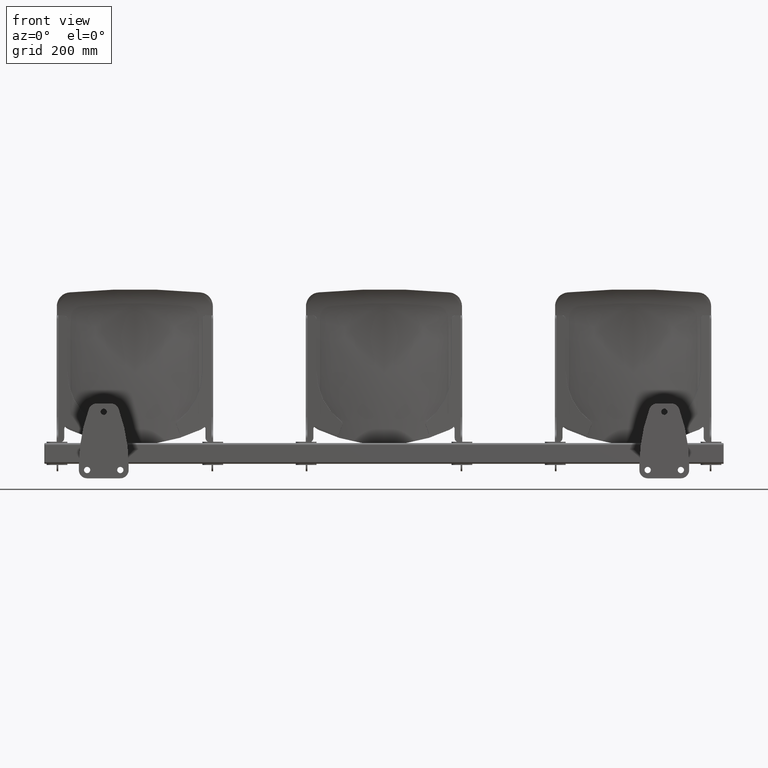
[diagram: clean part render]
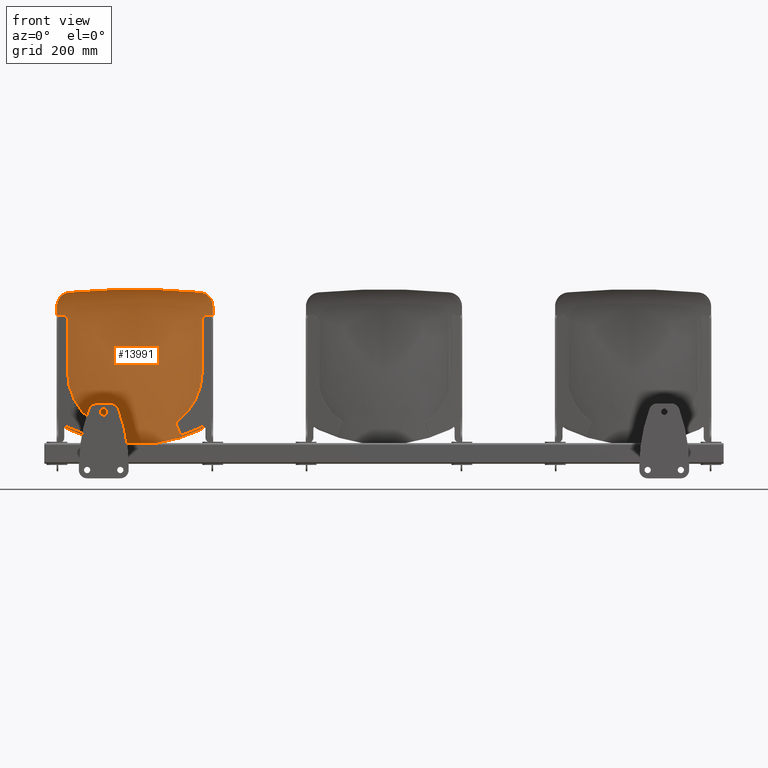
[diagram: same view with one face highlighted and labeled with its STEP entity id]
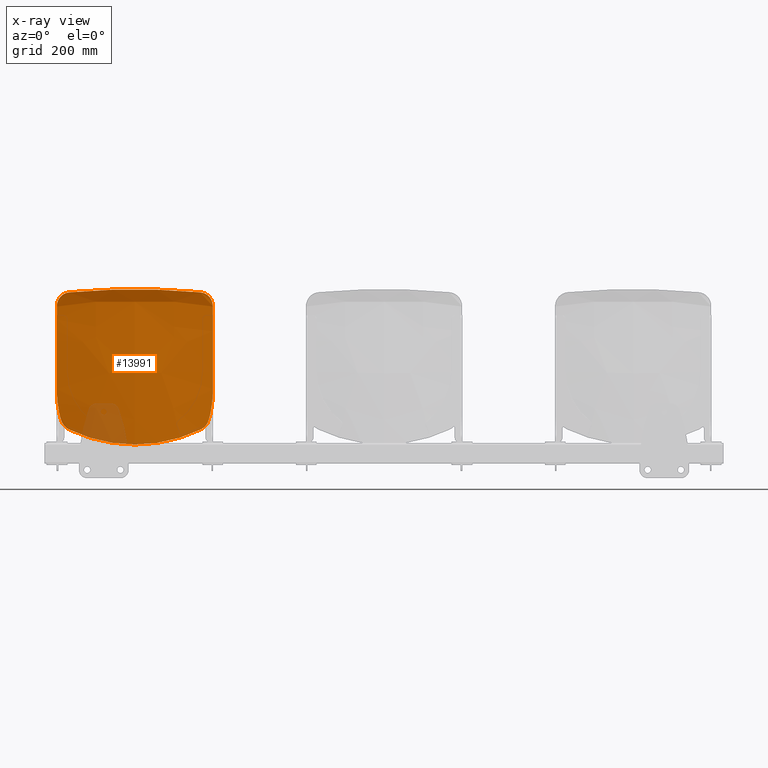
[diagram: x-ray of the same camera — body ghosted, the highlighted face saturated]
A machine part, front view. The second image highlights one B-rep face of the part: STEP entity #13991.
The next image is the same camera in x-ray: the body ghosted, the highlighted face saturated — about 6% of this face is hidden behind the body in this view.
In plain terms, the highlighted face is a freeform B-spline surface patch.
Its self-contained STEP definition (entity closure, byte-faithful):
#1968 = CARTESIAN_POINT ( 'NONE',  ( 191.7592815000313600, -3.583402664253942900, 24.07905034312246400 ) ) ;
#1969 = CARTESIAN_POINT ( 'NONE',  ( 191.7566067534346200, -15.27858033161749800, 9.394089762111978100 ) ) ;
#1970 = CARTESIAN_POINT ( 'NONE',  ( 191.7548956960925800, -22.76008143507479500, 0.0000000000000000000 ) ) ;
#1971 = CARTESIAN_POINT ( 'NONE',  ( 176.3717772607786600, 0.5835736182184803100, 374.0000000000000000 ) ) ;
#1972 = CARTESIAN_POINT ( 'NONE',  ( 175.0655948374305200, 0.5832158408119458800, 359.4733192631504200 ) ) ;
#1973 = CARTESIAN_POINT ( 'NONE',  ( 172.8476623149878200, 0.5826083252526981200, 334.8066287048631000 ) ) ;
#1974 = CARTESIAN_POINT ( 'NONE',  ( 184.9958536247104600, 0.5859358454375351900, 301.8064929026464300 ) ) ;
#1975 = CARTESIAN_POINT ( 'NONE',  ( 188.6935843980153000, 0.5776382964780557600, 274.9985839518418500 ) ) ;
#1976 = CARTESIAN_POINT ( 'NONE',  ( 191.2224053028615700, 0.5757583974971836000, 241.6650823493228300 ) ) ;
#1977 = CARTESIAN_POINT ( 'NONE',  ( 190.2081116190173600, 0.4925833937554080500, 199.8982916209794800 ) ) ;
#1978 = CARTESIAN_POINT ( 'NONE',  ( 190.5535382328384600, 0.6253362953344554500, 150.0974369892213100 ) ) ;
#1979 = CARTESIAN_POINT ( 'NONE',  ( 190.4727912743063600, -0.4384474263613436000, 99.82918264297163100 ) ) ;
#1980 = CARTESIAN_POINT ( 'NONE',  ( 190.4942562141736500, 2.475951680061150300, 60.46496127421702500 ) ) ;
#1981 = CARTESIAN_POINT ( 'NONE',  ( 190.5060094861552500, -3.633895967981415300, 24.07905034312263100 ) ) ;
#1982 = CARTESIAN_POINT ( 'NONE',  ( 190.5043349877578600, -15.34705217028908900, 9.394089762112090000 ) ) ;
#1983 = CARTESIAN_POINT ( 'NONE',  ( 190.5032637973951600, -22.84005429004987100, -1.665334536937734800E-013 ) ) ;
#1984 = CARTESIAN_POINT ( 'NONE',  ( 175.2356685718316100, 0.2917868091092956600, 374.0000000000001700 ) ) ;
#1985 = CARTESIAN_POINT ( 'NONE',  ( 173.9382310927863700, 0.2915756822343684700, 359.4733192631505900 ) ) ;
#1986 = CARTESIAN_POINT ( 'NONE',  ( 171.7351477185403900, 0.2912171831813137300, 334.8066287048632700 ) ) ;
#1987 = CARTESIAN_POINT ( 'NONE',  ( 183.8020063947158500, 0.2931807754169568600, 301.8064929026464800 ) ) ;
#1988 = CARTESIAN_POINT ( 'NONE',  ( 187.4744517908457600, 0.2881713093173532400, 274.9985839518420200 ) ) ;
#1989 = CARTESIAN_POINT ( 'NONE',  ( 189.9855889000586200, 0.2913447442456362800, 241.6650823493228300 ) ) ;
#1990 = CARTESIAN_POINT ( 'NONE',  ( 188.9764421434074100, 0.2182957592514189700, 199.8982916209794500 ) ) ;
#1991 = CARTESIAN_POINT ( 'NONE',  ( 189.3110165914721700, 0.4151334860700850400, 150.0974369892213100 ) ) ;
#1992 = CARTESIAN_POINT ( 'NONE',  ( 189.2269750863183900, -0.6003956527416698400, 99.82918264297163100 ) ) ;
#1993 = CARTESIAN_POINT ( 'NONE',  ( 189.2480049231275800, 2.299267386119796500, 60.46496127421707500 ) ) ;
#1994 = CARTESIAN_POINT ( 'NONE',  ( 189.2527374722791600, -3.684389271708943300, 24.07905034312257800 ) ) ;
#1995 = CARTESIAN_POINT ( 'NONE',  ( 189.2520632220810600, -15.41552400896090100, 9.394089762111923000 ) ) ;
#1996 = CARTESIAN_POINT ( 'NONE',  ( 189.2516318986977200, -22.92002714502522300, 0.0000000000000000000 ) ) ;
#1997 = CARTESIAN_POINT ( 'NONE',  ( 174.0995598828845900, -1.110223024625156500E-013, 374.0000000000000000 ) ) ;
#1998 = CARTESIAN_POINT ( 'NONE',  ( 172.8108673481421800, -6.447634320894124500E-005, 359.4733192631504200 ) ) ;
#1999 = CARTESIAN_POINT ( 'NONE',  ( 170.6226331220929600, -0.0001739588899596356000, 334.8066287048631000 ) ) ;
#2000 = CARTESIAN_POINT ( 'NONE',  ( 182.6081591647212000, 0.0004257053963230284000, 301.8064929026464300 ) ) ;
#2001 = CARTESIAN_POINT ( 'NONE',  ( 186.2553191836762200, -0.001295677843460296700, 274.9985839518418500 ) ) ;
#2002 = CARTESIAN_POINT ( 'NONE',  ( 188.7487724972556600, 0.006931090994088950900, 241.6650823493228600 ) ) ;
#2003 = CARTESIAN_POINT ( 'NONE',  ( 187.7447726677974900, -0.05599187525240356700, 199.8982916209794800 ) ) ;
#2004 = CARTESIAN_POINT ( 'NONE',  ( 188.0684949501058700, 0.2049306768057146400, 150.0974369892213100 ) ) ;
#2005 = CARTESIAN_POINT ( 'NONE',  ( 187.9811588983304200, -0.7623438791217185300, 99.82918264297180100 ) ) ;
#2006 = CARTESIAN_POINT ( 'NONE',  ( 188.0017536320814900, 2.122583092178553800, 60.46496127421702500 ) ) ;
#2007 = CARTESIAN_POINT ( 'NONE',  ( 187.9994654584030800, -3.734882575436415700, 24.07905034312241100 ) ) ;
#2008 = CARTESIAN_POINT ( 'NONE',  ( 187.9997914564043000, -15.48399584763260300, 9.394089762111923000 ) ) ;
#2009 = CARTESIAN_POINT ( 'NONE',  ( 188.0000000000003100, -23.00000000000029800, 5.551115123125782700E-014 ) ) ;
#2010 = CARTESIAN_POINT ( 'NONE',  ( 159.8982012710468200, -3.647335113865501900, 374.0000000000001700 ) ) ;
#2011 = CARTESIAN_POINT ( 'NONE',  ( 158.7188205400901500, -3.645566458562898800, 359.4733192631505900 ) ) ;
#2012 = CARTESIAN_POINT ( 'NONE',  ( 156.7162006664999900, -3.642563234781626100, 334.8066287048631000 ) ) ;
#2013 = CARTESIAN_POINT ( 'NONE',  ( 167.6850687897882600, -3.659012669861405600, 301.8064929026464800 ) ) ;
#2014 = CARTESIAN_POINT ( 'NONE',  ( 171.0161615940569400, -3.619633017351686600, 274.9985839518418500 ) ) ;
#2015 = CARTESIAN_POINT ( 'NONE',  ( 173.2885674622186200, -3.548239574649836300, 241.6650823493228300 ) ) ;
#2016 = CARTESIAN_POINT ( 'NONE',  ( 172.3489042226734400, -3.484587306552045000, 199.8982916209795600 ) ) ;
#2017 = CARTESIAN_POINT ( 'NONE',  ( 172.5369744330273000, -2.422604438998610100, 150.0974369892213100 ) ) ;
#2018 = CARTESIAN_POINT ( 'NONE',  ( 172.4084565484806400, -2.786696708874103500, 99.82918264297180100 ) ) ;
#2019 = CARTESIAN_POINT ( 'NONE',  ( 172.4236124940053400, -0.08597058208892338600, 60.46496127421702500 ) ) ;
#2020 = CARTESIAN_POINT ( 'NONE',  ( 172.3335652849519900, -4.366048872030070500, 24.07905034312235400 ) ) ;
#2021 = CARTESIAN_POINT ( 'NONE',  ( 172.3463943854447100, -16.33989383102862900, 9.394089762111923000 ) ) ;
#2022 = CARTESIAN_POINT ( 'NONE',  ( 172.3546012662825400, -23.99966068718906300, 0.0000000000000000000 ) ) ;
#2023 = CARTESIAN_POINT ( 'NONE',  ( 131.2661867296942800, -10.04919731254427800, 373.9999999999999400 ) ) ;
#2024 = CARTESIAN_POINT ( 'NONE',  ( 130.3040063659522300, -10.04446371871664600, 359.4733192631506400 ) ) ;
#2025 = CARTESIAN_POINT ( 'NONE',  ( 128.6701984972710300, -10.03642595039988400, 334.8066287048635600 ) ) ;
#2026 = CARTESIAN_POINT ( 'NONE',  ( 137.6189876742342100, -10.08045089084669300, 301.8064929026458000 ) ) ;
#2027 = CARTESIAN_POINT ( 'NONE',  ( 140.3269722737866500, -9.967930088158272600, 274.9985839518411700 ) ) ;
#2028 = CARTESIAN_POINT ( 'NONE',  ( 142.1671555287219900, -9.784783360178240100, 241.6650823493236500 ) ) ;
#2029 = CARTESIAN_POINT ( 'NONE',  ( 141.3705573537302800, -9.497894769141368000, 199.8982916209793900 ) ) ;
#2030 = CARTESIAN_POINT ( 'NONE',  ( 141.3684417409840800, -7.026153528549405900, 150.0974369892216200 ) ) ;
#2031 = CARTESIAN_POINT ( 'NONE',  ( 141.1938418451058500, -6.332498669985476200, 99.82918264297174500 ) ) ;
#2032 = CARTESIAN_POINT ( 'NONE',  ( 141.2008759528550300, -3.953384559557238100, 60.46496127421707500 ) ) ;
#2033 = CARTESIAN_POINT ( 'NONE',  ( 141.0012136615008300, -5.470281062059434900, 24.07905034312257800 ) ) ;
#2034 = CARTESIAN_POINT ( 'NONE',  ( 141.0296597136017200, -17.83779882003100400, 9.394089762112034900 ) ) ;
#2035 = CARTESIAN_POINT ( 'NONE',  ( 141.0478568865079300, -25.74940139546677600, 0.0000000000000000000 ) ) ;
#2036 = CARTESIAN_POINT ( 'NONE',  ( 87.79981516145579700, -16.93549098640922800, 374.0000000000002800 ) ) ;
#2037 = CARTESIAN_POINT ( 'NONE',  ( 87.16018659354705300, -16.92792855668506700, 359.4733192631508100 ) ) ;
#2038 = CARTESIAN_POINT ( 'NONE',  ( 86.07408025978406800, -16.91508734971886000, 334.8066287048633900 ) ) ;
#2039 = CARTESIAN_POINT ( 'NONE',  ( 92.02296616670196300, -16.98542196869184900, 301.8064929026470500 ) ) ;
#2040 = CARTESIAN_POINT ( 'NONE',  ( 93.81680311281550600, -16.79279938955369300, 274.9985839518428200 ) ) ;
#2041 = CARTESIAN_POINT ( 'NONE',  ( 95.03105943927278100, -16.48818535828566900, 241.6650823493223800 ) ) ;
#2042 = CARTESIAN_POINT ( 'NONE',  ( 94.48172396632787700, -15.95964248455600300, 199.8982916209797100 ) ) ;
#2043 = CARTESIAN_POINT ( 'NONE',  ( 94.37788691049726700, -11.96616637480879500, 150.0974369892206800 ) ) ;
#2044 = CARTESIAN_POINT ( 'NONE',  ( 94.21596740861112100, -10.13610858689395400, 99.82918264297180100 ) ) ;
#2045 = CARTESIAN_POINT ( 'NONE',  ( 94.21711623271282600, -8.100523834156215100, 60.46496127421724500 ) ) ;
#2046 = CARTESIAN_POINT ( 'NONE',  ( 94.00147219792437200, -6.652947047398328100, 24.07905034312246400 ) ) ;
#2047 = CARTESIAN_POINT ( 'NONE',  ( 94.03219518225523600, -19.44281577140810700, 9.394089762111923000 ) ) ;
#2048 = CARTESIAN_POINT ( 'NONE',  ( 94.05184892738940100, -27.62459972487274500, 0.0000000000000000000 ) ) ;
#2049 = CARTESIAN_POINT ( 'NONE',  ( 43.98675412974044000, -21.07821725085223700, 373.9999999999996000 ) ) ;
#2050 = CARTESIAN_POINT ( 'NONE',  ( 43.66749001821980200, -21.06909804852186200, 359.4733192631501300 ) ) ;
#2051 = CARTESIAN_POINT ( 'NONE',  ( 43.12537105877511600, -21.05361340023220900, 334.8066287048631600 ) ) ;
#2052 = CARTESIAN_POINT ( 'NONE',  ( 46.09469711595765100, -21.13842683250821600, 301.8064929026463100 ) ) ;
#2053 = CARTESIAN_POINT ( 'NONE',  ( 46.98815794703516200, -20.89704230365069300, 274.9985839518411700 ) ) ;
#2054 = CARTESIAN_POINT ( 'NONE',  ( 47.59151520274323800, -20.51884905074952300, 241.6650823493232000 ) ) ;
#2055 = CARTESIAN_POINT ( 'NONE',  ( 47.31135019484687400, -19.84431566015831900, 199.8982916209791900 ) ) ;
#2056 = CARTESIAN_POINT ( 'NONE',  ( 47.22864401855365200, -14.93325044084703500, 150.0974369892218500 ) ) ;
#2057 = CARTESIAN_POINT ( 'NONE',  ( 47.13401870486704600, -12.42010151494121800, 99.82918264297163100 ) ) ;
#2058 = CARTESIAN_POINT ( 'NONE',  ( 47.13352537934612500, -10.59020911032149200, 60.46496127421718800 ) ) ;
#2059 = CARTESIAN_POINT ( 'NONE',  ( 47.00093352157588800, -7.362369461196061100, 24.07905034312241100 ) ) ;
#2060 = CARTESIAN_POINT ( 'NONE',  ( 47.01982399342546900, -20.40587371042584800, 9.394089762111923000 ) ) ;
#2061 = CARTESIAN_POINT ( 'NONE',  ( 47.03190838324902500, -28.74991039025182000, 0.0000000000000000000 ) ) ;
#2062 = CARTESIAN_POINT ( 'NONE',  ( 14.66225220949522500, -22.00000000000002100, 374.0000000000000000 ) ) ;
#2063 = CARTESIAN_POINT ( 'NONE',  ( 14.55583085501893200, -21.99054997315613800, 359.4733192631505900 ) ) ;
#2064 = CARTESIAN_POINT ( 'NONE',  ( 14.37512456242439100, -21.97450357603697300, 334.8066287048632700 ) ) ;
#2065 = CARTESIAN_POINT ( 'NONE',  ( 15.36489976572564100, -22.06239385225705600, 301.8064929026463700 ) ) ;
#2066 = CARTESIAN_POINT ( 'NONE',  ( 15.66271997199652000, -21.81009793963123400, 274.9985839518418500 ) ) ;
#2067 = CARTESIAN_POINT ( 'NONE',  ( 15.86383899043086400, -21.41547858856279900, 241.6650823493228300 ) ) ;
#2068 = CARTESIAN_POINT ( 'NONE',  ( 15.77045055697227500, -20.70839552231901200, 199.8982916209794800 ) ) ;
#2069 = CARTESIAN_POINT ( 'NONE',  ( 15.74288147546313800, -15.59293277903772800, 150.0974369892213100 ) ) ;
#2070 = CARTESIAN_POINT ( 'NONE',  ( 15.71133964592020700, -12.92785167479987300, 99.82918264297168800 ) ) ;
#2071 = CARTESIAN_POINT ( 'NONE',  ( 15.71117517316968000, -11.14362298375914900, 60.46496127421707500 ) ) ;
#2072 = CARTESIAN_POINT ( 'NONE',  ( 15.66697783122310200, -7.519999861654858000, 24.07905034312246400 ) ) ;
#2073 = CARTESIAN_POINT ( 'NONE',  ( 15.67327466315478500, -20.61989171024680800, 9.394089762111923000 ) ) ;
#2074 = CARTESIAN_POINT ( 'NONE',  ( 15.67730279820198000, -29.00000000000035900, 0.0000000000000000000 ) ) ;
#2075 = CARTESIAN_POINT ( 'NONE',  ( -14.66225220949561400, -21.99999999999990800, 374.0000000000000000 ) ) ;
#2076 = CARTESIAN_POINT ( 'NONE',  ( -14.55583085501934600, -21.99054997315608200, 359.4733192631505900 ) ) ;
#2077 = CARTESIAN_POINT ( 'NONE',  ( -14.37512456242487100, -21.97450357603697300, 334.8066287048632700 ) ) ;
#2078 = CARTESIAN_POINT ( 'NONE',  ( -15.36489976572581100, -22.06239385225705600, 301.8064929026463700 ) ) ;
#2079 = CARTESIAN_POINT ( 'NONE',  ( -15.66271997199704000, -21.81009793963123400, 274.9985839518418500 ) ) ;
#2080 = CARTESIAN_POINT ( 'NONE',  ( -15.86383899043135600, -21.41547858856279900, 241.6650823493228300 ) ) ;
#2081 = CARTESIAN_POINT ( 'NONE',  ( -15.77045055697238000, -20.70839552231901200, 199.8982916209793900 ) ) ;
#2082 = CARTESIAN_POINT ( 'NONE',  ( -15.74288147546392100, -15.59293277903772800, 150.0974369892213100 ) ) ;
#2083 = CARTESIAN_POINT ( 'NONE',  ( -15.71133964592086600, -12.92785167479987300, 99.82918264297168800 ) ) ;
#2084 = CARTESIAN_POINT ( 'NONE',  ( -15.71117517316922900, -11.14362298375914900, 60.46496127421707500 ) ) ;
#2085 = CARTESIAN_POINT ( 'NONE',  ( -15.66697783122571200, -7.519999861654858000, 24.07905034312246400 ) ) ;
#2086 = CARTESIAN_POINT ( 'NONE',  ( -15.67327466315644500, -20.61989171024680800, 9.394089762111923000 ) ) ;
#2087 = CARTESIAN_POINT ( 'NONE',  ( -15.67730279820306400, -29.00000000000035900, 0.0000000000000000000 ) ) ;
#2088 = CARTESIAN_POINT ( 'NONE',  ( -43.98675412974078800, -21.07821725085218400, 374.0000000000001100 ) ) ;
#2089 = CARTESIAN_POINT ( 'NONE',  ( -43.66749001822022800, -21.06909804852169500, 359.4733192631500200 ) ) ;
#2090 = CARTESIAN_POINT ( 'NONE',  ( -43.12537105877568400, -21.05361340023215200, 334.8066287048620200 ) ) ;
#2091 = CARTESIAN_POINT ( 'NONE',  ( -46.09469711595760800, -21.13842683250821600, 301.8064929026471600 ) ) ;
#2092 = CARTESIAN_POINT ( 'NONE',  ( -46.98815794703580200, -20.89704230365069300, 274.9985839518414000 ) ) ;
#2093 = CARTESIAN_POINT ( 'NONE',  ( -47.59151520274313900, -20.51884905074952300, 241.6650823493247100 ) ) ;
#2094 = CARTESIAN_POINT ( 'NONE',  ( -47.31135019484753500, -19.84431566015820900, 199.8982916209794800 ) ) ;
#2095 = CARTESIAN_POINT ( 'NONE',  ( -47.22864401855419900, -14.93325044084703500, 150.0974369892211400 ) ) ;
#2096 = CARTESIAN_POINT ( 'NONE',  ( -47.13401870486765000, -12.42010151494116200, 99.82918264297208600 ) ) ;
#2097 = CARTESIAN_POINT ( 'NONE',  ( -47.13352537934599000, -10.59020911032149200, 60.46496127421696800 ) ) ;
#2098 = CARTESIAN_POINT ( 'NONE',  ( -47.00093352157838900, -7.362369461196061100, 24.07905034312246400 ) ) ;
#2099 = CARTESIAN_POINT ( 'NONE',  ( -47.01982399342718100, -20.40587371042590400, 9.394089762111923000 ) ) ;
#2100 = CARTESIAN_POINT ( 'NONE',  ( -47.03190838325014100, -28.74991039025187700, 0.0000000000000000000 ) ) ;
#2101 = CARTESIAN_POINT ( 'NONE',  ( -87.79981516145629400, -16.93549098640922800, 374.0000000000001100 ) ) ;
#2102 = CARTESIAN_POINT ( 'NONE',  ( -87.16018659354762100, -16.92792855668506700, 359.4733192631512100 ) ) ;
#2103 = CARTESIAN_POINT ( 'NONE',  ( -86.07408025978472200, -16.91508734971897000, 334.8066287048646400 ) ) ;
#2104 = CARTESIAN_POINT ( 'NONE',  ( -92.02296616670217600, -16.98542196869173900, 301.8064929026459700 ) ) ;
#2105 = CARTESIAN_POINT ( 'NONE',  ( -93.81680311281608900, -16.79279938955386000, 274.9985839518421900 ) ) ;
#2106 = CARTESIAN_POINT ( 'NONE',  ( -95.03105943927376100, -16.48818535828561200, 241.6650823493214100 ) ) ;
#2107 = CARTESIAN_POINT ( 'NONE',  ( -94.48172396632757900, -15.95964248455617000, 199.8982916209795600 ) ) ;
#2108 = CARTESIAN_POINT ( 'NONE',  ( -94.37788691049820500, -11.96616637480874000, 150.0974369892215100 ) ) ;
#2109 = CARTESIAN_POINT ( 'NONE',  ( -94.21596740861210200, -10.13610858689412100, 99.82918264297153100 ) ) ;
#2110 = CARTESIAN_POINT ( 'NONE',  ( -94.21711623271185900, -8.100523834156270200, 60.46496127421724500 ) ) ;
#2111 = CARTESIAN_POINT ( 'NONE',  ( -94.00147219792728500, -6.652947047398328100, 24.07905034312246400 ) ) ;
#2112 = CARTESIAN_POINT ( 'NONE',  ( -94.03219518225698400, -19.44281577140810700, 9.394089762111923000 ) ) ;
#2113 = CARTESIAN_POINT ( 'NONE',  ( -94.05184892739039500, -27.62459972487268800, 0.0000000000000000000 ) ) ;
#2114 = CARTESIAN_POINT ( 'NONE',  ( -131.2661867296946000, -10.04919731254422300, 373.9999999999996600 ) ) ;
#2115 = CARTESIAN_POINT ( 'NONE',  ( -130.3040063659525200, -10.04446371871658900, 359.4733192631500200 ) ) ;
#2116 = CARTESIAN_POINT ( 'NONE',  ( -128.6701984972712300, -10.03642595039988400, 334.8066287048621900 ) ) ;
#2117 = CARTESIAN_POINT ( 'NONE',  ( -137.6189876742347200, -10.08045089084663800, 301.8064929026466000 ) ) ;
#2118 = CARTESIAN_POINT ( 'NONE',  ( -140.3269722737871100, -9.967930088158439600, 274.9985839518418500 ) ) ;
#2119 = CARTESIAN_POINT ( 'NONE',  ( -142.1671555287225300, -9.784783360178128200, 241.6650823493236000 ) ) ;
#2120 = CARTESIAN_POINT ( 'NONE',  ( -141.3705573537314100, -9.497894769141312900, 199.8982916209793100 ) ) ;
#2121 = CARTESIAN_POINT ( 'NONE',  ( -141.3684417409836000, -7.026153528549405900, 150.0974369892211100 ) ) ;
#2122 = CARTESIAN_POINT ( 'NONE',  ( -141.1938418451069300, -6.332498669985531200, 99.82918264297185800 ) ) ;
#2123 = CARTESIAN_POINT ( 'NONE',  ( -141.2008759528552300, -3.953384559557293600, 60.46496127421702500 ) ) ;
#2124 = CARTESIAN_POINT ( 'NONE',  ( -141.0012136615034700, -5.470281062059489900, 24.07905034312268800 ) ) ;
#2125 = CARTESIAN_POINT ( 'NONE',  ( -141.0296597136035100, -17.83779882003105800, 9.394089762112090000 ) ) ;
#2126 = CARTESIAN_POINT ( 'NONE',  ( -141.0478568865092100, -25.74940139546705400, 0.0000000000000000000 ) ) ;
#2127 = CARTESIAN_POINT ( 'NONE',  ( -159.8982012710473300, -3.647335113865390900, 374.0000000000001100 ) ) ;
#2128 = CARTESIAN_POINT ( 'NONE',  ( -158.7188205400906900, -3.645566458562843300, 359.4733192631504200 ) ) ;
#2129 = CARTESIAN_POINT ( 'NONE',  ( -156.7162006665005500, -3.642563234781681600, 334.8066287048631000 ) ) ;
#2130 = CARTESIAN_POINT ( 'NONE',  ( -167.6850687897886000, -3.659012669861405600, 301.8064929026463700 ) ) ;
#2131 = CARTESIAN_POINT ( 'NONE',  ( -171.0161615940576500, -3.619633017351908700, 274.9985839518418500 ) ) ;
#2132 = CARTESIAN_POINT ( 'NONE',  ( -173.2885674622193100, -3.548239574649669800, 241.6650823493228300 ) ) ;
#2133 = CARTESIAN_POINT ( 'NONE',  ( -172.3489042226740700, -3.484587306551989400, 199.8982916209794800 ) ) ;
#2134 = CARTESIAN_POINT ( 'NONE',  ( -172.5369744330268400, -2.422604438998721100, 150.0974369892213900 ) ) ;
#2135 = CARTESIAN_POINT ( 'NONE',  ( -172.4084565484818400, -2.786696708874270000, 99.82918264297163100 ) ) ;
#2136 = CARTESIAN_POINT ( 'NONE',  ( -172.4236124940050300, -0.08597058208897889700, 60.46496127421702500 ) ) ;
#2137 = CARTESIAN_POINT ( 'NONE',  ( -172.3335652849546900, -4.366048872030181500, 24.07905034312246400 ) ) ;
#2138 = CARTESIAN_POINT ( 'NONE',  ( -172.3463943854465300, -16.33989383102873900, 9.394089762111923000 ) ) ;
#2139 = CARTESIAN_POINT ( 'NONE',  ( -172.3546012662837700, -23.99966068718911700, 0.0000000000000000000 ) ) ;
#2140 = CARTESIAN_POINT ( 'NONE',  ( -174.0995598828851300, -1.665334536937734800E-013, 374.0000000000000000 ) ) ;
#2141 = CARTESIAN_POINT ( 'NONE',  ( -172.8108673481428100, -6.447634309791894200E-005, 359.4733192631504200 ) ) ;
#2142 = CARTESIAN_POINT ( 'NONE',  ( -170.6226331220936200, -0.0001739588899041244500, 334.8066287048631000 ) ) ;
#2143 = CARTESIAN_POINT ( 'NONE',  ( -182.6081591647215700, 0.0004257053967116064500, 301.8064929026464300 ) ) ;
#2144 = CARTESIAN_POINT ( 'NONE',  ( -186.2553191836768700, -0.001295677843349274400, 274.9985839518418500 ) ) ;
#2145 = CARTESIAN_POINT ( 'NONE',  ( -188.7487724972563100, 0.006931090994533040100, 241.6650823493228300 ) ) ;
#2146 = CARTESIAN_POINT ( 'NONE',  ( -187.7447726677982600, -0.05599187525212601100, 199.8982916209794800 ) ) ;
#2147 = CARTESIAN_POINT ( 'NONE',  ( -188.0684949501052500, 0.2049306768058811700, 150.0974369892212800 ) ) ;
#2148 = CARTESIAN_POINT ( 'NONE',  ( -187.9811588983316100, -0.7623438791213854600, 99.82918264297180100 ) ) ;
#2149 = CARTESIAN_POINT ( 'NONE',  ( -188.0017536320812300, 2.122583092178664800, 60.46496127421713100 ) ) ;
#2150 = CARTESIAN_POINT ( 'NONE',  ( -187.9994654584058100, -3.734882575436138100, 24.07905034312241100 ) ) ;
#2151 = CARTESIAN_POINT ( 'NONE',  ( -187.9997914564061400, -15.48399584763227000, 9.394089762111978100 ) ) ;
#2152 = CARTESIAN_POINT ( 'NONE',  ( -188.0000000000015600, -22.99999999999996400, 1.665334536937734800E-013 ) ) ;
#3146 = VERTEX_POINT ( 'NONE', #3178 ) ;
#3148 = VERTEX_POINT ( 'NONE', #3184 ) ;
#3150 = VERTEX_POINT ( 'NONE', #3186 ) ;
#3155 = VERTEX_POINT ( 'NONE', #3191 ) ;
#3157 = VERTEX_POINT ( 'NONE', #3193 ) ;
#3158 = VERTEX_POINT ( 'NONE', #3194 ) ;
#3160 = VERTEX_POINT ( 'NONE', #3196 ) ;
#3162 = VERTEX_POINT ( 'NONE', #3198 ) ;
#3163 = VERTEX_POINT ( 'NONE', #3199 ) ;
#3178 = CARTESIAN_POINT ( 'NONE',  ( -186.0003693703180800, 4.691400545819846000E-006, 275.0000391429377900 ) ) ;
#3184 = CARTESIAN_POINT ( 'NONE',  ( 187.9999993862941800, 0.0001307344554835054900, 99.99602941533413500 ) ) ;
#3186 = CARTESIAN_POINT ( 'NONE',  ( 177.8472204401215000, 0.0001370729931782221900, 315.1059132242447700 ) ) ;
#3191 = CARTESIAN_POINT ( 'NONE',  ( -187.8563218026025400, -0.0002953768529767586400, 249.8295049315200900 ) ) ;
#3193 = CARTESIAN_POINT ( 'NONE',  ( -188.0001262463934200, 2.541450083715091100E-005, 199.9999624081456500 ) ) ;
#3194 = CARTESIAN_POINT ( 'NONE',  ( -2.238493258309652400E-011, -21.99999999999996400, 374.0000000000000000 ) ) ;
#3196 = CARTESIAN_POINT ( 'NONE',  ( 188.0001262323119100, 2.540896976155337900E-005, 199.9999623146957800 ) ) ;
#3198 = CARTESIAN_POINT ( 'NONE',  ( -157.5625035321429300, -18.72199756527098600, 7.457756213524735500 ) ) ;
#3199 = CARTESIAN_POINT ( 'NONE',  ( 186.0148617918830200, 0.0001889755161799122600, 274.8693296845450500 ) ) ;
#3566 = EDGE_CURVE ( 'NONE', #4079, #4100, #10437, .T. ) ;
#3568 = EDGE_CURVE ( 'NONE', #3157, #4100, #10647, .T. ) ;
#3574 = EDGE_CURVE ( 'NONE', #4133, #3155, #10594, .T. ) ;
#3578 = EDGE_CURVE ( 'NONE', #4122, #4090, #10780, .T. ) ;
#3582 = EDGE_CURVE ( 'NONE', #4107, #3148, #10429, .T. ) ;
#3591 = EDGE_CURVE ( 'NONE', #4075, #3150, #10541, .T. ) ;
#3595 = EDGE_CURVE ( 'NONE', #4070, #3163, #10736, .T. ) ;
#3601 = EDGE_CURVE ( 'NONE', #4126, #3160, #10554, .T. ) ;
#3604 = EDGE_CURVE ( 'NONE', #3162, #4128, #10690, .T. ) ;
#3607 = EDGE_CURVE ( 'NONE', #4128, #4107, #10771, .T. ) ;
#3608 = EDGE_CURVE ( 'NONE', #3148, #4126, #10447, .T. ) ;
#3610 = EDGE_CURVE ( 'NONE', #3160, #4120, #10591, .T. ) ;
#3613 = EDGE_CURVE ( 'NONE', #4120, #4070, #10482, .T. ) ;
#3615 = EDGE_CURVE ( 'NONE', #3163, #4071, #10474, .T. ) ;
#3617 = EDGE_CURVE ( 'NONE', #4071, #4075, #10723, .T. ) ;
#3619 = EDGE_CURVE ( 'NONE', #3150, #4114, #10613, .T. ) ;
#3621 = EDGE_CURVE ( 'NONE', #4114, #3158, #10510, .T. ) ;
#3623 = EDGE_CURVE ( 'NONE', #4137, #4122, #13910, .T. ) ;
#3625 = EDGE_CURVE ( 'NONE', #4090, #3146, #13909, .T. ) ;
#3627 = EDGE_CURVE ( 'NONE', #3146, #4133, #13906, .T. ) ;
#3629 = EDGE_CURVE ( 'NONE', #3155, #7733, #13898, .T. ) ;
#3631 = EDGE_CURVE ( 'NONE', #7733, #3157, #13905, .T. ) ;
#3633 = EDGE_CURVE ( 'NONE', #4079, #3162, #13904, .T. ) ;
#3832 = CARTESIAN_POINT ( 'NONE',  ( 187.9999999999875800, 0.6627163998067547900, 80.17735979494133900 ) ) ;
#3833 = CARTESIAN_POINT ( 'NONE',  ( 187.9999999995669400, 0.6622531807149941700, 80.19355300695394800 ) ) ;
#3834 = CARTESIAN_POINT ( 'NONE',  ( 187.9999999882371400, 0.6569993115035345200, 80.37704541772588100 ) ) ;
#3835 = CARTESIAN_POINT ( 'NONE',  ( 187.9999996369981000, 0.6416582846296538000, 80.90443325985909000 ) ) ;
#3836 = CARTESIAN_POINT ( 'NONE',  ( 187.9999985434773700, 0.6261308613980305400, 81.41691360099844100 ) ) ;
#3837 = CARTESIAN_POINT ( 'NONE',  ( 187.9999937577279100, 0.5734613536083237300, 83.11601396944946900 ) ) ;
#3838 = CARTESIAN_POINT ( 'NONE',  ( 187.9999865211890400, 0.5284482738581493000, 84.44596691098368500 ) ) ;
#3839 = CARTESIAN_POINT ( 'NONE',  ( 187.9999687590374200, 0.3914381243311837500, 88.34926918403851900 ) ) ;
#3840 = CARTESIAN_POINT ( 'NONE',  ( 187.9999646408649600, 0.2978820984814130000, 90.83615080980149500 ) ) ;
#3841 = CARTESIAN_POINT ( 'NONE',  ( 187.9999806147882000, 0.1309034290046678900, 95.58451167021895900 ) ) ;
#3842 = CARTESIAN_POINT ( 'NONE',  ( 187.9999999999999100, 0.05738231381101558500, 97.84596959755845100 ) ) ;
#3843 = CARTESIAN_POINT ( 'NONE',  ( 187.9999993862941800, 0.0001307344554835054900, 99.99602941533413500 ) ) ;
#3898 = CARTESIAN_POINT ( 'NONE',  ( 180.7989972531995900, 0.0001361969673033963100, 305.0353241584657000 ) ) ;
#3899 = CARTESIAN_POINT ( 'NONE',  ( 182.0028732582690100, -6.420261122741521800E-005, 299.9859136392646500 ) ) ;
#3948 = CARTESIAN_POINT ( 'NONE',  ( 188.0002311657102600, -1.073385786359459800, 41.69001669799604300 ) ) ;
#3952 = CARTESIAN_POINT ( 'NONE',  ( 158.6470069993034100, -3.560112624779288000, 338.2107555783607000 ) ) ;
#3955 = CARTESIAN_POINT ( 'NONE',  ( 188.0000000000000000, -0.03623408467468003400, 240.5739880507190700 ) ) ;
#3956 = CARTESIAN_POINT ( 'NONE',  ( -177.8472204401221300, 0.0001370729933447556400, 315.1059132242442000 ) ) ;
#3958 = CARTESIAN_POINT ( 'NONE',  ( 188.0000055521278200, -6.042561717656269600E-005, 149.9928624707748400 ) ) ;
#3959 = CARTESIAN_POINT ( 'NONE',  ( 157.5625035321474500, -18.72199756527037800, 7.457756213525179600 ) ) ;
#3961 = CARTESIAN_POINT ( 'NONE',  ( -186.0148617918873400, 0.0001889755166240014700, 274.8693296845094100 ) ) ;
#3963 = CARTESIAN_POINT ( 'NONE',  ( -158.6470069993035600, -3.560112624779343500, 338.2107555783608200 ) ) ;
#4068 = CARTESIAN_POINT ( 'NONE',  ( 179.2862481404855000, 0.0001593253498066168400, 310.0706236428882800 ) ) ;
#4070 = VERTEX_POINT ( 'NONE', #11256 ) ;
#4069 = CARTESIAN_POINT ( 'NONE',  ( 177.8472204401215000, 0.0001370729931782221900, 315.1059132242447700 ) ) ;
#4071 = VERTEX_POINT ( 'NONE', #11257 ) ;
#4072 = CARTESIAN_POINT ( 'NONE',  ( 187.8552697650005100, -3.862728008510817700E-005, 249.8863720149140900 ) ) ;
#4074 = CARTESIAN_POINT ( 'NONE',  ( 187.8563218329318300, -0.0002953781442216474300, 249.8295040933976200 ) ) ;
#4075 = VERTEX_POINT ( 'NONE', #11259 ) ;
#4079 = VERTEX_POINT ( 'NONE', #11260 ) ;
#4090 = VERTEX_POINT ( 'NONE', #11263 ) ;
#4100 = VERTEX_POINT ( 'NONE', #11267 ) ;
#4103 = CARTESIAN_POINT ( 'NONE',  ( 187.5078607131779900, 0.002815993958734070100, 258.2347498107806100 ) ) ;
#4105 = CARTESIAN_POINT ( 'NONE',  ( 186.8850598177080500, 0.0007819467227064481200, 266.5798535911825400 ) ) ;
#4107 = VERTEX_POINT ( 'NONE', #3948 ) ;
#4106 = CARTESIAN_POINT ( 'NONE',  ( 186.0148617918830200, 0.0001889755161799122600, 274.8693296845450500 ) ) ;
#4114 = VERTEX_POINT ( 'NONE', #3952 ) ;
#4117 = CARTESIAN_POINT ( 'NONE',  ( 188.0000112297361700, -3.361936225858785100E-005, 149.9952416193741000 ) ) ;
#4119 = CARTESIAN_POINT ( 'NONE',  ( 188.0000055521278200, -6.042561717656269600E-005, 149.9928624707748400 ) ) ;
#4120 = VERTEX_POINT ( 'NONE', #3955 ) ;
#4122 = VERTEX_POINT ( 'NONE', #3956 ) ;
#4126 = VERTEX_POINT ( 'NONE', #3958 ) ;
#4128 = VERTEX_POINT ( 'NONE', #3959 ) ;
#4133 = VERTEX_POINT ( 'NONE', #3961 ) ;
#4137 = VERTEX_POINT ( 'NONE', #3963 ) ;
#4141 = CARTESIAN_POINT ( 'NONE',  ( 187.9606046967516300, 0.1179701340958477800, 166.6950655508276800 ) ) ;
#4142 = CARTESIAN_POINT ( 'NONE',  ( 187.8525334131430200, 0.03086408191760686700, 183.3205720531404400 ) ) ;
#4143 = CARTESIAN_POINT ( 'NONE',  ( 188.0001262323119100, 2.540896976155337900E-005, 199.9999623146957800 ) ) ;
#4144 = CARTESIAN_POINT ( 'NONE',  ( -144.5391213608410200, -20.31510074864004900, 6.222141298442315000 ) ) ;
#4145 = CARTESIAN_POINT ( 'NONE',  ( -157.5625035321429300, -18.72199756527098600, 7.457756213524735500 ) ) ;
#4152 = CARTESIAN_POINT ( 'NONE',  ( 157.5625035321474500, -18.72199756527037800, 7.457756213525179600 ) ) ;
#4153 = CARTESIAN_POINT ( 'NONE',  ( 159.7929402216813900, -18.44915632144712700, 7.669372582029556200 ) ) ;
#4154 = CARTESIAN_POINT ( 'NONE',  ( -131.4949876362809100, -21.76794755431304700, 5.139085263987687400 ) ) ;
#4155 = CARTESIAN_POINT ( 'NONE',  ( -105.3587712907122400, -24.31480322385672800, 3.278923426414107800 ) ) ;
#4156 = CARTESIAN_POINT ( 'NONE',  ( -92.26665740368817100, -25.40843253399523500, 2.501822158491241700 ) ) ;
#4157 = CARTESIAN_POINT ( 'NONE',  ( -66.02971868728901900, -27.18002595036682200, 1.255575291673366000 ) ) ;
#4158 = CARTESIAN_POINT ( 'NONE',  ( -52.88490666361622100, -27.85815273802415600, 0.7864375143283312000 ) ) ;
#4159 = CARTESIAN_POINT ( 'NONE',  ( -33.12609999206401300, -28.54008339017054400, 0.3159260987701573700 ) ) ;
#4160 = CARTESIAN_POINT ( 'NONE',  ( -26.53291337244788300, -28.71168995650987900, 0.1979615547741007700 ) ) ;
#4161 = CARTESIAN_POINT ( 'NONE',  ( -13.33250030057185700, -28.94132311925074000, 0.04022027226677443000 ) ) ;
#4162 = CARTESIAN_POINT ( 'NONE',  ( -6.726775548985481000, -28.99926200461411000, 0.0005062140241689157300 ) ) ;
#4163 = CARTESIAN_POINT ( 'NONE',  ( 13.07336321616869800, -29.00145493722248700, -0.0009979867627706463100 ) ) ;
#4164 = CARTESIAN_POINT ( 'NONE',  ( 26.26299525916218900, -28.77385888083277300, 0.1546538554109343800 ) ) ;
#4165 = CARTESIAN_POINT ( 'NONE',  ( 52.62166498383566400, -27.87026437270038300, 0.7780556413398842500 ) ) ;
#4166 = CARTESIAN_POINT ( 'NONE',  ( 65.79069575802034800, -27.19404103692447800, 1.245803308489791900 ) ) ;
#4167 = CARTESIAN_POINT ( 'NONE',  ( 85.52945520466994400, -25.86438614856073700, 2.181034011781039600 ) ) ;
#4168 = CARTESIAN_POINT ( 'NONE',  ( 92.10714391810263600, -25.36870242463562900, 2.531778517294661000 ) ) ;
#4169 = CARTESIAN_POINT ( 'NONE',  ( 105.2414312573264000, -24.27995628714989700, 3.310051901289790400 ) ) ;
#4170 = CARTESIAN_POINT ( 'NONE',  ( 111.8000965918645400, -23.68677066196104200, 3.737667244213615600 ) ) ;
#4171 = CARTESIAN_POINT ( 'NONE',  ( 131.4520104613030800, -21.77283862507282600, 5.135425685951452700 ) ) ;
#4172 = CARTESIAN_POINT ( 'NONE',  ( 144.5211355077888400, -20.31730089291700400, 6.220434860897887200 ) ) ;
#4173 = CARTESIAN_POINT ( 'NONE',  ( 157.5625035321474500, -18.72199756527037800, 7.457756213525179600 ) ) ;
#4174 = CARTESIAN_POINT ( 'NONE',  ( 187.9999999999999100, -0.2219147512736763300, 108.3302839504103000 ) ) ;
#4175 = CARTESIAN_POINT ( 'NONE',  ( 187.9999993862941800, 0.0001307344554835054900, 99.99602941533413500 ) ) ;
#4176 = CARTESIAN_POINT ( 'NONE',  ( 161.9325915982577200, -18.01644744951881400, 8.088554760168834800 ) ) ;
#4177 = CARTESIAN_POINT ( 'NONE',  ( 165.0225058164346600, -17.16648934154627800, 8.999951539645556100 ) ) ;
#4628 = CARTESIAN_POINT ( 'NONE',  ( -188.0012035646785200, -1.083772762154600100, 41.68685205327143700 ) ) ;
#4636 = CARTESIAN_POINT ( 'NONE',  ( -188.0022870628924400, -0.6496528624197972500, 44.33293525947968300 ) ) ;
#4661 = CARTESIAN_POINT ( 'NONE',  ( 59.99299127292479700, -19.41076263990894500, 369.1015598623796400 ) ) ;
#4662 = CARTESIAN_POINT ( 'NONE',  ( 58.27801566160975700, -19.55770601003733200, 369.3796050390699300 ) ) ;
#4663 = CARTESIAN_POINT ( 'NONE',  ( 54.84860110722449600, -19.83845880571096400, 369.9108127927341300 ) ) ;
#4664 = CARTESIAN_POINT ( 'NONE',  ( 53.13395564272769200, -19.97230260924812800, 370.1640403916343900 ) ) ;
#4665 = CARTESIAN_POINT ( 'NONE',  ( 47.99020352420859600, -20.35434807277500700, 370.8868330951639200 ) ) ;
#4666 = CARTESIAN_POINT ( 'NONE',  ( 44.56128110997235600, -20.58306608736943100, 371.3195159002717700 ) ) ;
#4667 = CARTESIAN_POINT ( 'NONE',  ( 27.41788408270645800, -21.59808070752241700, 373.2397383414833000 ) ) ;
#4668 = CARTESIAN_POINT ( 'NONE',  ( 13.70704284810866200, -22.00000000000045500, 374.0000000000010800 ) ) ;
#4669 = CARTESIAN_POINT ( 'NONE',  ( -2.238493258309652400E-011, -21.99999999999996400, 374.0000000000000000 ) ) ;
#4670 = CARTESIAN_POINT ( 'NONE',  ( -182.0059755496061800, -0.0001199722734490649100, 299.9718825208767600 ) ) ;
#4671 = CARTESIAN_POINT ( 'NONE',  ( -183.6877362238171000, -0.07002038604590037100, 291.7231690956402900 ) ) ;
#4672 = CARTESIAN_POINT ( 'NONE',  ( -163.1276409179802700, -2.545690893960091300, 335.7638302971889700 ) ) ;
#4673 = CARTESIAN_POINT ( 'NONE',  ( -166.1397573594748600, -1.882654029927822500, 333.4042487188589800 ) ) ;
#4674 = CARTESIAN_POINT ( 'NONE',  ( -167.1055969409354400, -1.673622257921335600, 332.5598249825611700 ) ) ;
#4675 = CARTESIAN_POINT ( 'NONE',  ( -168.4960314157943900, -1.381750529237748800, 331.2037277326711500 ) ) ;
#4676 = CARTESIAN_POINT ( 'NONE',  ( -168.9480051047391400, -1.288467086370672400, 330.7383414623482200 ) ) ;
#4677 = CARTESIAN_POINT ( 'NONE',  ( -169.8222978925356000, -1.111791992556956800, 329.7887247154832300 ) ) ;
#4678 = CARTESIAN_POINT ( 'NONE',  ( -170.2457383101595700, -1.028157180391385600, 329.3034123283119400 ) ) ;
#4679 = CARTESIAN_POINT ( 'NONE',  ( -172.2958563597126700, -0.6337936761417534100, 326.8253370971450000 ) ) ;
#4680 = CARTESIAN_POINT ( 'NONE',  ( -173.7237890756548800, -0.3945392608685463500, 324.6798405077970000 ) ) ;
#4681 = CARTESIAN_POINT ( 'NONE',  ( -175.2412749965533000, -0.1953005227278336600, 321.7919854020906300 ) ) ;
#4682 = CARTESIAN_POINT ( 'NONE',  ( -175.5312004386949500, -0.1604674917127971200, 321.2038409074603500 ) ) ;
#4683 = CARTESIAN_POINT ( 'NONE',  ( -176.0783527660547600, -0.1013294846700583500, 320.0178117271432800 ) ) ;
#4684 = CARTESIAN_POINT ( 'NONE',  ( -176.3363311715825100, -0.07692021713278693300, 319.4185581908895400 ) ) ;
#4685 = CARTESIAN_POINT ( 'NONE',  ( -177.0637829210250200, -0.01869396360695450800, 317.6022156890192000 ) ) ;
#4686 = CARTESIAN_POINT ( 'NONE',  ( -177.4869289616303500, 0.0001315016381715688300, 316.3666060708406500 ) ) ;
#4687 = CARTESIAN_POINT ( 'NONE',  ( -177.8472204401221300, 0.0001370729933447556400, 315.1059132242442000 ) ) ;
#4688 = CARTESIAN_POINT ( 'NONE',  ( -186.0045962450377300, 3.979005149456141900E-006, 274.9564048359245000 ) ) ;
#4689 = CARTESIAN_POINT ( 'NONE',  ( -186.0003693703180800, 4.691400545819846000E-006, 275.0000391429377900 ) ) ;
#4690 = CARTESIAN_POINT ( 'NONE',  ( -185.0207390430329900, -0.02303505226744561800, 283.3995669725202300 ) ) ;
#4691 = CARTESIAN_POINT ( 'NONE',  ( -186.0003693703180800, 4.691400545819846000E-006, 275.0000391429377900 ) ) ;
#4692 = CARTESIAN_POINT ( 'NONE',  ( -187.9519628783952800, -0.008852473454762891900, 246.7450686976239600 ) ) ;
#4693 = CARTESIAN_POINT ( 'NONE',  ( -187.8563218026025400, -0.0002953768529767586400, 249.8295049315200900 ) ) ;
#4694 = CARTESIAN_POINT ( 'NONE',  ( -186.0091855026314500, 7.993475432825617000E-006, 274.9128097014856800 ) ) ;
#4695 = CARTESIAN_POINT ( 'NONE',  ( -186.0148617918873400, 0.0001889755166240014700, 274.8693296845094100 ) ) ;
#4696 = CARTESIAN_POINT ( 'NONE',  ( -188.0000000000001100, -0.03623408467451350000, 240.5739880507190100 ) ) ;
#4697 = CARTESIAN_POINT ( 'NONE',  ( -188.0000000000001100, -0.1060188497901606400, 227.0492502622922200 ) ) ;
#4698 = CARTESIAN_POINT ( 'NONE',  ( -188.0000000000001100, -0.02031143313386105400, 243.6599006653991100 ) ) ;
#4699 = CARTESIAN_POINT ( 'NONE',  ( -188.0000000000001100, -0.03623408467451350000, 240.5739880507190100 ) ) ;
#4700 = CARTESIAN_POINT ( 'NONE',  ( -188.0000587285631500, -1.447830650546276800, 39.46435351716105100 ) ) ;
#4701 = CARTESIAN_POINT ( 'NONE',  ( -188.0012035646785200, -1.083772762154600100, 41.68685205327143700 ) ) ;
#4702 = CARTESIAN_POINT ( 'NONE',  ( -188.0000000000001100, -0.05075889577989413400, 213.5246241435164600 ) ) ;
#4703 = CARTESIAN_POINT ( 'NONE',  ( -188.0001262463934200, 2.541450083715091100E-005, 199.9999624081456500 ) ) ;
#4706 = CARTESIAN_POINT ( 'NONE',  ( -187.7971251457988400, -1.911303956992511400, 37.29855285475516500 ) ) ;
#4707 = CARTESIAN_POINT ( 'NONE',  ( -187.2175313746368500, -2.758875540557170300, 34.13244390677603200 ) ) ;
#4708 = CARTESIAN_POINT ( 'NONE',  ( -186.9781520750548200, -3.066914173309163200, 33.09092064502476700 ) ) ;
#4709 = CARTESIAN_POINT ( 'NONE',  ( -186.4085725741871900, -3.738856218016805200, 31.03655975209743200 ) ) ;
#4710 = CARTESIAN_POINT ( 'NONE',  ( -186.0766125645525300, -4.104976098929932400, 30.02005557707009900 ) ) ;
#4711 = CARTESIAN_POINT ( 'NONE',  ( -184.9683082467081800, -5.268362767177713100, 27.07474172418935500 ) ) ;
#4712 = CARTESIAN_POINT ( 'NONE',  ( -184.0768802603433300, -6.131571870150226600, 25.22982941985087300 ) ) ;
#4713 = CARTESIAN_POINT ( 'NONE',  ( -182.5158305964265500, -7.505729579575519700, 22.61334249022494800 ) ) ;
#4714 = CARTESIAN_POINT ( 'NONE',  ( -181.9575054633288900, -7.977360974725044700, 21.76613583550820200 ) ) ;
#4715 = CARTESIAN_POINT ( 'NONE',  ( -180.7633604544101600, -8.938350132623529700, 20.12216219811372800 ) ) ;
#4716 = CARTESIAN_POINT ( 'NONE',  ( -180.1345719291287300, -9.422027925982895600, 19.33498469189743200 ) ) ;
#4717 = CARTESIAN_POINT ( 'NONE',  ( -178.1518376287067700, -10.87019945216304600, 17.07074177962456900 ) ) ;
#4718 = CARTESIAN_POINT ( 'NONE',  ( -176.7026688452613400, -11.83190475739553300, 15.68983596709357200 ) ) ;
#4719 = CARTESIAN_POINT ( 'NONE',  ( -174.7113538469583600, -12.98983527645395800, 14.11899133956087300 ) ) ;
#4720 = CARTESIAN_POINT ( 'NONE',  ( -174.3040060162878400, -13.21920671751306400, 13.81267854074850200 ) ) ;
#4721 = CARTESIAN_POINT ( 'NONE',  ( -173.4702205147378000, -13.67248069280434000, 13.21600947525208800 ) ) ;
#4722 = CARTESIAN_POINT ( 'NONE',  ( -173.0428318578800300, -13.89683853635557200, 12.92508384589996600 ) ) ;
#4723 = CARTESIAN_POINT ( 'NONE',  ( -171.7423180279646400, -14.55417714331342400, 12.08432733515265900 ) ) ;
#4724 = CARTESIAN_POINT ( 'NONE',  ( -170.8484770595665300, -14.97288124834823500, 11.56444885012183300 ) ) ;
#4725 = CARTESIAN_POINT ( 'NONE',  ( -168.0824033808959300, -16.16008857629285300, 10.12663633805612300 ) ) ;
#4726 = CARTESIAN_POINT ( 'NONE',  ( -166.1266696214551900, -16.86038420635073000, 9.328880252661445400 ) ) ;
#4727 = CARTESIAN_POINT ( 'NONE',  ( -161.9496565054524500, -18.01407924288169600, 8.090412236179995300 ) ) ;
#4728 = CARTESIAN_POINT ( 'NONE',  ( -159.7913168350771100, -18.44935490444148100, 7.669218560555574300 ) ) ;
#4729 = CARTESIAN_POINT ( 'NONE',  ( -157.5625035321429300, -18.72199756527098600, 7.457756213524735500 ) ) ;
#5166 = CARTESIAN_POINT ( 'NONE',  ( 191.7405075052197400, 2.652635974002559600, 60.46496127421713100 ) ) ;
#5493 = ORIENTED_EDGE ( 'NONE', *, *, #3607, .T. ) ;
#5494 = ORIENTED_EDGE ( 'NONE', *, *, #3582, .T. ) ;
#5732 = CARTESIAN_POINT ( 'NONE',  ( -188.0000000000001100, -0.03623408467451350000, 240.5739880507190100 ) ) ;
#5985 = CARTESIAN_POINT ( 'NONE',  ( -13.70315709112116000, -21.99999999999947800, 373.9999999999990900 ) ) ;
#5989 = CARTESIAN_POINT ( 'NONE',  ( -2.238493258309652400E-011, -21.99999999999996400, 374.0000000000000000 ) ) ;
#5992 = CARTESIAN_POINT ( 'NONE',  ( -27.40251786177563500, -21.59829927750126900, 373.2401518862341700 ) ) ;
#5993 = CARTESIAN_POINT ( 'NONE',  ( -44.52189235745715500, -20.58556990604177600, 371.3242526558227000 ) ) ;
#5994 = CARTESIAN_POINT ( 'NONE',  ( -47.94552520622358600, -20.35741036279572600, 370.8926263182627300 ) ) ;
#5995 = CARTESIAN_POINT ( 'NONE',  ( -54.79230194186704500, -19.84938349205829800, 369.9314897528165000 ) ) ;
#5996 = CARTESIAN_POINT ( 'NONE',  ( -58.21688396923641300, -19.56938746362637700, 369.4017358264018200 ) ) ;
#5997 = CARTESIAN_POINT ( 'NONE',  ( -68.48099206416172500, -18.65178511681361700, 367.6652941120046300 ) ) ;
#5998 = CARTESIAN_POINT ( 'NONE',  ( -75.24413141047331500, -17.94262275974103500, 366.3230389061860100 ) ) ;
#5999 = CARTESIAN_POINT ( 'NONE',  ( -88.61714266932014500, -16.33821413107511600, 363.2822731389094300 ) ) ;
#6000 = CARTESIAN_POINT ( 'NONE',  ( -95.22698482958828900, -15.44280821913940100, 361.5837553788703600 ) ) ;
#6001 = CARTESIAN_POINT ( 'NONE',  ( -108.2982282558019700, -13.47659193804441100, 357.8392658228970600 ) ) ;
#6002 = CARTESIAN_POINT ( 'NONE',  ( -114.7595952493986900, -12.40555965448884900, 355.7933048063777100 ) ) ;
#6003 = CARTESIAN_POINT ( 'NONE',  ( -127.5385371953039700, -10.10605476084551700, 351.3585547668187100 ) ) ;
#6004 = CARTESIAN_POINT ( 'NONE',  ( -133.8560606569987800, -8.877202496892922000, 348.9698051385338400 ) ) ;
#6005 = CARTESIAN_POINT ( 'NONE',  ( -146.3530371576182700, -6.296030642478657800, 343.8492205666911400 ) ) ;
#6006 = CARTESIAN_POINT ( 'NONE',  ( -152.5324352537480500, -4.943244926504332800, 341.1174582662251900 ) ) ;
#6007 = CARTESIAN_POINT ( 'NONE',  ( -158.6470069993035600, -3.560112624779343500, 338.2107555783608200 ) ) ;
#6015 = CARTESIAN_POINT ( 'NONE',  ( -188.0000057204465800, 0.6892700364292350100, 77.81413039222712800 ) ) ;
#6016 = CARTESIAN_POINT ( 'NONE',  ( -188.0000012761541100, 0.6806090625133931500, 78.16196618944746900 ) ) ;
#6017 = CARTESIAN_POINT ( 'NONE',  ( -188.0000000448796100, 0.6715539034215430900, 78.51102995050041500 ) ) ;
#6018 = CARTESIAN_POINT ( 'NONE',  ( -187.9999999931317500, 0.6677273716808992400, 78.65664399999170100 ) ) ;
#6019 = CARTESIAN_POINT ( 'NONE',  ( -187.9999999984772800, 0.6675670310197653300, 78.66270594968855800 ) ) ;
#6020 = CARTESIAN_POINT ( 'NONE',  ( -187.9999999799213700, 0.6669472572300098000, 78.68621841428735300 ) ) ;
#6021 = CARTESIAN_POINT ( 'NONE',  ( -187.9999999341683600, 0.6660162665478165400, 78.72150048459320700 ) ) ;
#6022 = CARTESIAN_POINT ( 'NONE',  ( -187.9999993048912500, 0.6600947469895645000, 78.94520769805139100 ) ) ;
#6023 = CARTESIAN_POINT ( 'NONE',  ( -187.9999967887188700, 0.6543415771615658200, 79.15858527255716100 ) ) ;
#6024 = CARTESIAN_POINT ( 'NONE',  ( -187.9999341437996300, 0.5655096646646501400, 82.40236736897972500 ) ) ;
#6025 = CARTESIAN_POINT ( 'NONE',  ( -187.9994800347203100, 0.4509624061082400100, 85.74714622946842700 ) ) ;
#6026 = CARTESIAN_POINT ( 'NONE',  ( -187.9986517321493400, 0.2033617786277308000, 93.03012430046699400 ) ) ;
#6027 = CARTESIAN_POINT ( 'NONE',  ( -187.9982983954859000, 0.06993764059986651300, 96.96826173512265300 ) ) ;
#6028 = CARTESIAN_POINT ( 'NONE',  ( -187.9988404034300500, -0.05842154600938829400, 103.3383474381390400 ) ) ;
#6029 = CARTESIAN_POINT ( 'NONE',  ( -187.9991746908249300, -0.08968672453618137300, 105.5387575123954300 ) ) ;
#6030 = CARTESIAN_POINT ( 'NONE',  ( -187.9996250835142200, -0.1191079303154778100, 108.9548556455506800 ) ) ;
#6031 = CARTESIAN_POINT ( 'NONE',  ( -187.9997653972411300, -0.1260118634006741300, 110.1127998685110900 ) ) ;
#6032 = CARTESIAN_POINT ( 'NONE',  ( -187.9999129367367300, -0.1320979699822306100, 111.8785464623068200 ) ) ;
#6033 = CARTESIAN_POINT ( 'NONE',  ( -187.9999708295861200, -0.1340748382611373400, 112.7686270274416000 ) ) ;
#6034 = CARTESIAN_POINT ( 'NONE',  ( -187.9999945213205300, -0.1344802531487213100, 113.6695087631855800 ) ) ;
#6035 = CARTESIAN_POINT ( 'NONE',  ( -187.9999997288817900, -0.1344240143814994500, 114.1217488621962600 ) ) ;
#6036 = CARTESIAN_POINT ( 'NONE',  ( -187.9999997920048700, -0.1343568200075382400, 114.2741671134828500 ) ) ;
#6037 = CARTESIAN_POINT ( 'NONE',  ( -188.0000004369440500, -0.1341660641364307800, 114.5680945865391900 ) ) ;
#6038 = CARTESIAN_POINT ( 'NONE',  ( -188.0000014366885600, -0.1340429855617277500, 114.7148085604897700 ) ) ;
#6039 = CARTESIAN_POINT ( 'NONE',  ( -188.0000551760299700, -0.1291019510137920400, 119.5481202832335200 ) ) ;
#6040 = CARTESIAN_POINT ( 'NONE',  ( -188.0006425985038700, -0.09822056830072212200, 123.9787516329436300 ) ) ;
#6041 = CARTESIAN_POINT ( 'NONE',  ( -188.0011152717920600, -0.03784077606390218200, 132.3161530824618800 ) ) ;
#6042 = CARTESIAN_POINT ( 'NONE',  ( -188.0010323784683000, -0.008097778000101769200, 136.2229627741409100 ) ) ;
#6043 = CARTESIAN_POINT ( 'NONE',  ( -188.0004512504168600, 0.02121331922923314400, 143.5062798044310500 ) ) ;
#6044 = CARTESIAN_POINT ( 'NONE',  ( -188.0000000000003400, 0.02106111504201280100, 146.8828438574750800 ) ) ;
#6045 = CARTESIAN_POINT ( 'NONE',  ( -188.0000111042558600, -6.752819425859257800E-005, 149.9928625333074600 ) ) ;
#6048 = CARTESIAN_POINT ( 'NONE',  ( -187.9606046966045200, 0.1179701345372243100, 166.6950656131827200 ) ) ;
#6049 = CARTESIAN_POINT ( 'NONE',  ( -188.0000112297363200, -3.361936269377982600E-005, 149.9952416192824100 ) ) ;
#6050 = CARTESIAN_POINT ( 'NONE',  ( -188.0000111042558600, -6.752819425859257800E-005, 149.9928625333074600 ) ) ;
#6141 = EDGE_LOOP ( 'NONE', ( #15168, #5493, #5494, #13434, #13435, #13436, #13437, #13438, #13439, #13440, #13441, #13442, #13443, #13444, #13445, #13446, #13447, #13448, #13449, #13450, #13451, #13452, #13453, #13454 ) ) ;
#6687 = CARTESIAN_POINT ( 'NONE',  ( 177.5078859497257000, 0.8753604273275539200, 374.0000000000000000 ) ) ;
#6695 = CARTESIAN_POINT ( 'NONE',  ( 176.1929585820747100, 0.8748559993895233000, 359.4733192631505900 ) ) ;
#6696 = CARTESIAN_POINT ( 'NONE',  ( 173.9601769114352400, 0.8739994673239159800, 334.8066287048632700 ) ) ;
#6697 = CARTESIAN_POINT ( 'NONE',  ( 186.1897008547051100, 0.8786909154583355500, 301.8064929026464300 ) ) ;
#6698 = CARTESIAN_POINT ( 'NONE',  ( 189.9127170051848700, 0.8671052836385917400, 274.9985839518418500 ) ) ;
#6699 = CARTESIAN_POINT ( 'NONE',  ( 192.4592217056645300, 0.8601720507488974700, 241.6650823493228300 ) ) ;
#6700 = CARTESIAN_POINT ( 'NONE',  ( 191.4397810946272800, 0.7668710282593416100, 199.8982916209794800 ) ) ;
#6701 = CARTESIAN_POINT ( 'NONE',  ( 191.7960598742047600, 0.8355391045989368800, 150.0974369892213900 ) ) ;
#6702 = CARTESIAN_POINT ( 'NONE',  ( 191.7186074622943300, -0.2764991999812949100, 99.82918264297163100 ) ) ;
#7017 = EDGE_CURVE ( 'NONE', #3158, #4137, #13869, .T. ) ;
#7733 = VERTEX_POINT ( 'NONE', #5732 ) ;
#8084 = CARTESIAN_POINT ( 'NONE',  ( -186.8850598177102700, 0.0007819467229067347400, 266.5798535911614000 ) ) ;
#8085 = CARTESIAN_POINT ( 'NONE',  ( -186.0148617918873400, 0.0001889755166240014700, 274.8693296845094100 ) ) ;
#8089 = CARTESIAN_POINT ( 'NONE',  ( -177.8472204401221300, 0.0001370729933447556400, 315.1059132242442000 ) ) ;
#8091 = CARTESIAN_POINT ( 'NONE',  ( -187.5078606923417800, 0.002815993890954993500, 258.2347500899748500 ) ) ;
#8092 = CARTESIAN_POINT ( 'NONE',  ( -187.8552697417543700, -3.862708874656080800E-005, 249.8863725735428700 ) ) ;
#8093 = CARTESIAN_POINT ( 'NONE',  ( -187.8563218026025400, -0.0002953768529767586400, 249.8295049315200900 ) ) ;
#8095 = CARTESIAN_POINT ( 'NONE',  ( -179.2862481404860900, 0.0001593253500829429000, 310.0706236428878200 ) ) ;
#8109 = CARTESIAN_POINT ( 'NONE',  ( -180.8017965757545700, 0.0001361541688311757500, 305.0260064022712600 ) ) ;
#8110 = CARTESIAN_POINT ( 'NONE',  ( -182.0044438124057300, -5.044485602120664100E-007, 299.9813643962091300 ) ) ;
#8111 = CARTESIAN_POINT ( 'NONE',  ( -182.0059755496061800, -0.0001199722734490649100, 299.9718825208767600 ) ) ;
#8112 = CARTESIAN_POINT ( 'NONE',  ( 188.0001569802912500, -0.6434040897014496900, 44.24673741514320100 ) ) ;
#8113 = CARTESIAN_POINT ( 'NONE',  ( 188.0002311657102600, -1.073385786359459800, 41.69001669799604300 ) ) ;
#8128 = CARTESIAN_POINT ( 'NONE',  ( 188.0002004513779400, -0.3280206429165321000, 46.75883080214410400 ) ) ;
#8129 = CARTESIAN_POINT ( 'NONE',  ( 188.0001794455299900, 0.1676882322751472900, 51.62424390945917500 ) ) ;
#8130 = CARTESIAN_POINT ( 'NONE',  ( 188.0001069686970300, 0.3491469932175869700, 53.97564642126899100 ) ) ;
#8131 = CARTESIAN_POINT ( 'NONE',  ( 188.0000296338548100, 0.5507351761103163000, 57.38511377482667800 ) ) ;
#8132 = CARTESIAN_POINT ( 'NONE',  ( 188.0000090525487600, 0.6060471712628735500, 58.50207381544452500 ) ) ;
#8133 = CARTESIAN_POINT ( 'NONE',  ( 188.0000015089922800, 0.6571284715180029100, 59.73716200832398500 ) ) ;
#8134 = CARTESIAN_POINT ( 'NONE',  ( 188.0000005742409100, 0.6654094151712614000, 59.94256220174614200 ) ) ;
#8135 = CARTESIAN_POINT ( 'NONE',  ( 188.0000000885563900, 0.6746729614214911400, 60.18141408637959700 ) ) ;
#8136 = CARTESIAN_POINT ( 'NONE',  ( 188.0000000080798900, 0.6788826932575858800, 60.29212837821918900 ) ) ;
#8137 = CARTESIAN_POINT ( 'NONE',  ( 188.0000000007353800, 0.6804872924560597700, 60.33468177422665200 ) ) ;
#8138 = CARTESIAN_POINT ( 'NONE',  ( 187.9999999996935600, 0.6811279715966357400, 60.35170081108820700 ) ) ;
#8139 = CARTESIAN_POINT ( 'NONE',  ( 187.9999999997660300, 0.6817099514476302500, 60.36718467386476300 ) ) ;
#8140 = CARTESIAN_POINT ( 'NONE',  ( 187.9999999919316700, 0.6833313594838074100, 60.41047405453484500 ) ) ;
#8141 = CARTESIAN_POINT ( 'NONE',  ( 187.9999997807185800, 0.7015839003482056100, 60.90059325913539800 ) ) ;
#8142 = CARTESIAN_POINT ( 'NONE',  ( 187.9999975519342000, 0.7177571877407532600, 61.38232230753848700 ) ) ;
#8143 = CARTESIAN_POINT ( 'NONE',  ( 187.9999876806417700, 0.7585319672900071600, 62.72033810499478800 ) ) ;
#8144 = CARTESIAN_POINT ( 'NONE',  ( 187.9999764144863500, 0.7792098510294579400, 63.58280496427141800 ) ) ;
#8145 = CARTESIAN_POINT ( 'NONE',  ( 187.9999148978574500, 0.8575182649925701100, 67.74901543537347900 ) ) ;
#8146 = CARTESIAN_POINT ( 'NONE',  ( 187.9998676185231000, 0.8437818613488317100, 70.61522174094358200 ) ) ;
#8147 = CARTESIAN_POINT ( 'NONE',  ( 187.9998926704428200, 0.7844858118717189500, 75.43992987978491300 ) ) ;
#8148 = CARTESIAN_POINT ( 'NONE',  ( 187.9999540579027800, 0.7373962301631266100, 77.39810080762930500 ) ) ;
#8149 = CARTESIAN_POINT ( 'NONE',  ( 187.9999921826620600, 0.6876947098130976600, 79.28463757449631500 ) ) ;
#8150 = CARTESIAN_POINT ( 'NONE',  ( 187.9999976275358600, 0.6780971696863308300, 79.63386141535905000 ) ) ;
#8151 = CARTESIAN_POINT ( 'NONE',  ( 187.9999996074850200, 0.6678994785983694000, 79.99518910659011800 ) ) ;
#8152 = CARTESIAN_POINT ( 'NONE',  ( 187.9999998512198000, 0.6662122455319863200, 80.05475309189367300 ) ) ;
#8153 = CARTESIAN_POINT ( 'NONE',  ( 187.9999999771140200, 0.6642662930659588600, 80.12309430987922100 ) ) ;
#8154 = CARTESIAN_POINT ( 'NONE',  ( 187.9999999979132500, 0.6633681266496569400, 80.15455719311653100 ) ) ;
#8155 = CARTESIAN_POINT ( 'NONE',  ( 187.9999999998099400, 0.6630235365073119400, 80.16661552024457600 ) ) ;
#8156 = CARTESIAN_POINT ( 'NONE',  ( 188.0000000000789300, 0.6628857692731705600, 80.17143542858116200 ) ) ;
#9704 = CARTESIAN_POINT ( 'NONE',  ( -188.0001262463934200, 2.541450083715091100E-005, 199.9999624081456500 ) ) ;
#9718 = CARTESIAN_POINT ( 'NONE',  ( -187.8525334123356700, 0.03086408126688504000, 183.3205721773864500 ) ) ;
#9719 = CARTESIAN_POINT ( 'NONE',  ( -188.0024722731949700, -0.2939506153448788700, 47.15831624106067500 ) ) ;
#9720 = CARTESIAN_POINT ( 'NONE',  ( -188.0024225126178400, 0.2710497398211843500, 53.07993217866838600 ) ) ;
#9721 = CARTESIAN_POINT ( 'NONE',  ( -188.0021820371105700, 0.4805861891277090600, 56.17533090148489100 ) ) ;
#9722 = CARTESIAN_POINT ( 'NONE',  ( -188.0014612997416100, 0.7510332483497368400, 62.63056684434935300 ) ) ;
#9723 = CARTESIAN_POINT ( 'NONE',  ( -188.0009825776940900, 0.8112463409078190000, 65.99114990217168500 ) ) ;
#9724 = CARTESIAN_POINT ( 'NONE',  ( -188.0003986706768200, 0.8035839978773633400, 71.23478564972890600 ) ) ;
#9725 = CARTESIAN_POINT ( 'NONE',  ( -188.0002281826668600, 0.7849107386902696200, 73.01650368887986500 ) ) ;
#9726 = CARTESIAN_POINT ( 'NONE',  ( -188.0000656917603400, 0.7366653401512217600, 75.74071747489553300 ) ) ;
#9727 = CARTESIAN_POINT ( 'NONE',  ( -188.0000272054002700, 0.7172269422442635300, 76.65739834832341200 ) ) ;
#10429 = B_SPLINE_CURVE_WITH_KNOTS ( 'NONE', 3,
 ( #8113, #8112, #8128, #8129, #8130, #8131, #8132, #8133, #8134, #8135, #8136, #8137, #8138, #8139, #8140, #8141, #8142, #8143, #8144, #8145, #8146, #8147, #8148, #8149, #8150, #8151, #8152, #8153, #8154, #8155, #8156, #3832, #3833, #3834, #3835, #3836, #3837, #3838, #3839, #3840, #3841, #3842, #3843 ),
 .UNSPECIFIED., .F., .F.,
 ( 4, 2, 2, 2, 1, 1, 1, 2, 2, 1, 2, 2, 2, 2, 2, 1, 1, 1, 2, 2, 1, 1, 2, 2, 2, 4 ),
 ( 0.3633871575399147400, 0.4429637628473998000, 0.5225403681548849200, 0.5623286708086273600, 0.5673022086403450800, 0.5697889775562039500, 0.5710323620141334300, 0.5713432081286158300, 0.5716540542430983400, 0.5722757464720633600, 0.5822228221355036900, 0.6021169734623846900, 0.6816935787699089900, 0.7612701840774331900, 0.7811643354043137400, 0.7836511043201741500, 0.7848944887781041900, 0.7855161810070693300, 0.7856716040643103600, 0.7858270271215515000, 0.7861378732360339000, 0.7911114110677544000, 0.8010584867311947300, 0.8408467893849556100, 0.9204233946924778000, 1.000000000000000000 ),
 .UNSPECIFIED. ) ;
#10437 = B_SPLINE_CURVE_WITH_KNOTS ( 'NONE', 3,
 ( #4628, #4636, #9719, #9720, #9721, #9722, #9723, #9724, #9725, #9726, #9727, #6015, #6016, #6017, #6018, #6019, #6020, #6021, #6022, #6023, #6024, #6025, #6026, #6027, #6028, #6029, #6030, #6031, #6032, #6033, #6034, #6035, #6036, #6037, #6038, #6039, #6040, #6041, #6042, #6043, #6044, #6045 ),
 .UNSPECIFIED., .F., .F.,
 ( 4, 2, 2, 2, 2, 2, 1, 2, 2, 1, 1, 2, 2, 2, 2, 2, 1, 2, 2, 2, 2, 2, 4 ),
 ( 0.3418074902021571200, 0.3829445220644970300, 0.4240815539268370000, 0.4652185857891769100, 0.4857871017203467800, 0.4960713596859318600, 0.4986424241773280700, 0.4999279564230261200, 0.5002493394844504900, 0.5005707225458749800, 0.5012134886687241700, 0.5063556176515207100, 0.5886296813762634800, 0.6709037451010060300, 0.7120407769633776400, 0.7326092928945634500, 0.7428935508601561800, 0.7480356798429526100, 0.7506067443343509300, 0.7531778088257492500, 0.8354518725504991300, 0.9177259362752496800, 1.000000000000000000 ),
 .UNSPECIFIED. ) ;
#10447 = B_SPLINE_CURVE_WITH_KNOTS ( 'NONE', 3,
 ( #4175, #4174, #13818, #13819, #13820, #13821 ),
 .UNSPECIFIED., .F., .F.,
 ( 4, 2, 4 ),
 ( 0.1065604945434727200, 0.1317286419521297400, 0.1568967893607867700 ),
 .UNSPECIFIED. ) ;
#10474 = B_SPLINE_CURVE_WITH_KNOTS ( 'NONE', 3,
 ( #13827, #13826, #13832, #13833 ),
 .UNSPECIFIED., .F., .F.,
 ( 4, 4 ),
 ( 0.7390416898494063200, 0.7393860156629057400 ),
 .UNSPECIFIED. ) ;
#10482 = B_SPLINE_CURVE_WITH_KNOTS ( 'NONE', 3,
 ( #13822, #13823, #13828, #13829 ),
 .UNSPECIFIED., .F., .F.,
 ( 4, 4 ),
 ( 0.0000000000000000000, 0.009223176487255060500 ),
 .UNSPECIFIED. ) ;
#10510 = B_SPLINE_CURVE_WITH_KNOTS ( 'NONE', 3,
 ( #13838, #13839, #13858, #13859, #13860, #13861, #13862, #13863, #13864, #13865, #13866, #4661, #4662, #4663, #4664, #4665, #4666, #4667, #4668, #4669 ),
 .UNSPECIFIED., .F., .F.,
 ( 4, 2, 2, 2, 2, 2, 2, 2, 2, 4 ),
 ( 0.01747894250387419700, 0.03804815724628478300, 0.05861737198869536300, 0.07918658673110591500, 0.09975580147351645300, 0.1203250162159270100, 0.1254673199015296500, 0.1306096235871323000, 0.1408942309583376400, 0.1820326604431589400 ),
 .UNSPECIFIED. ) ;
#10541 = B_SPLINE_CURVE_WITH_KNOTS ( 'NONE', 3,
 ( #3899, #3898, #4068, #4069 ),
 .UNSPECIFIED., .F., .F.,
 ( 4, 4 ),
 ( 0.8051992016779040400, 0.8449645817332793700 ),
 .UNSPECIFIED. ) ;
#10554 = B_SPLINE_CURVE_WITH_KNOTS ( 'NONE', 3,
 ( #4119, #4117, #4141, #4142, #4143 ),
 .UNSPECIFIED., .F., .F.,
 ( 4, 1, 4 ),
 ( 0.4098273238912484900, 0.4098461384073759900, 0.5418886412939554200 ),
 .UNSPECIFIED. ) ;
#10591 = B_SPLINE_CURVE_WITH_KNOTS ( 'NONE', 3,
 ( #13817, #13816, #13824, #13825 ),
 .UNSPECIFIED., .F., .F.,
 ( 4, 4 ),
 ( 0.0000000000000000000, 0.04057401022467249000 ),
 .UNSPECIFIED. ) ;
#10594 = B_SPLINE_CURVE_WITH_KNOTS ( 'NONE', 3,
 ( #8085, #8084, #8091, #8092, #8093 ),
 .UNSPECIFIED., .F., .F.,
 ( 4, 1, 4 ),
 ( 0.2609583101506876600, 0.3264298036242168600, 0.3268784142531473400 ),
 .UNSPECIFIED. ) ;
#10613 = B_SPLINE_CURVE_WITH_KNOTS ( 'NONE', 3,
 ( #13835, #13834, #13840, #13841, #13842, #13843, #13844, #13845, #13846, #13847, #13848, #13849, #13850, #13851, #13852, #13853, #13854, #13855 ),
 .UNSPECIFIED., .F., .F.,
 ( 4, 2, 2, 2, 2, 2, 2, 2, 4 ),
 ( 0.0000000000000000000, 0.007757990828395031600, 0.01163698624259254900, 0.01357648394969137400, 0.01551598165679020000, 0.02327397248518561100, 0.02521347019228449600, 0.02715296789938338400, 0.03103196331358108400 ),
 .UNSPECIFIED. ) ;
#10647 = B_SPLINE_CURVE_WITH_KNOTS ( 'NONE', 3,
 ( #9704, #9718, #6048, #6049, #6050 ),
 .UNSPECIFIED., .F., .F.,
 ( 4, 1, 4 ),
 ( 0.4581113582125830300, 0.5901538615926242800, 0.5901726761091143900 ),
 .UNSPECIFIED. ) ;
#10690 = B_SPLINE_CURVE_WITH_KNOTS ( 'NONE', 3,
 ( #4145, #4144, #4154, #4155, #4156, #4157, #4158, #4159, #4160, #4161, #4162, #4163, #4164, #4165, #4166, #4167, #4168, #4169, #4170, #4171, #4172, #4173 ),
 .UNSPECIFIED., .F., .F.,
 ( 4, 2, 2, 2, 2, 2, 2, 2, 2, 2, 4 ),
 ( 0.03079469900314655100, 0.07027660330751273100, 0.1097585076118789000, 0.1492404119162451000, 0.1689813640684281700, 0.1887223162206112500, 0.2282042205249774400, 0.2676861248293436700, 0.2874270769815267500, 0.3071680291337098300, 0.3466499334380759300 ),
 .UNSPECIFIED. ) ;
#10723 = B_SPLINE_CURVE_WITH_KNOTS ( 'NONE', 3,
 ( #13830, #13831, #13836, #13837 ),
 .UNSPECIFIED., .F., .F.,
 ( 4, 4 ),
 ( 0.03445279691215157700, 0.05969954567152369700 ),
 .UNSPECIFIED. ) ;
#10736 = B_SPLINE_CURVE_WITH_KNOTS ( 'NONE', 3,
 ( #4074, #4072, #4103, #4105, #4106 ),
 .UNSPECIFIED., .F., .F.,
 ( 4, 1, 4 ),
 ( 0.6731215835413418800, 0.6735701963757830800, 0.7390416898494063200 ),
 .UNSPECIFIED. ) ;
#10771 = B_SPLINE_CURVE_WITH_KNOTS ( 'NONE', 3,
 ( #4152, #4153, #4176, #4177, #13788, #13790, #13792, #13793, #13794, #13795, #13796, #13797, #13798, #13799, #13800, #13801, #13802, #13803, #13804, #13805, #13806, #13807, #13808, #13809, #13810, #13811, #13812, #13813, #13814, #13815 ),
 .UNSPECIFIED., .F., .F.,
 ( 4, 2, 2, 2, 2, 2, 2, 2, 2, 2, 2, 2, 2, 2, 4 ),
 ( 0.0000000000000000000, 0.006655776765279943100, 0.009983665147919916800, 0.01164760933923993800, 0.01331155353055995900, 0.01996733029583990300, 0.02163127448715985700, 0.02329521867847981300, 0.02662310706111971300, 0.02995099544375962000, 0.03161493963507954600, 0.03327888382639947900, 0.03993466059167923700, 0.04659043735695898900, 0.05324621412223872600 ),
 .UNSPECIFIED. ) ;
#10780 = B_SPLINE_CURVE_WITH_KNOTS ( 'NONE', 3,
 ( #8089, #8095, #8109, #8110, #8111 ),
 .UNSPECIFIED., .F., .F.,
 ( 4, 1, 4 ),
 ( 0.1550354182667220100, 0.1948007983974826000, 0.1948743837161259500 ),
 .UNSPECIFIED. ) ;
#11256 = CARTESIAN_POINT ( 'NONE',  ( 187.8563218329318300, -0.0002953781442216474300, 249.8295040933976200 ) ) ;
#11257 = CARTESIAN_POINT ( 'NONE',  ( 186.0003693703418400, 4.691400379286392300E-006, 275.0000391426920600 ) ) ;
#11259 = CARTESIAN_POINT ( 'NONE',  ( 182.0028732582690100, -6.420261122741521800E-005, 299.9859136392646500 ) ) ;
#11260 = CARTESIAN_POINT ( 'NONE',  ( -188.0012035646785200, -1.083772762154600100, 41.68685205327143700 ) ) ;
#11263 = CARTESIAN_POINT ( 'NONE',  ( -182.0059755496061800, -0.0001199722734490649100, 299.9718825208767600 ) ) ;
#11267 = CARTESIAN_POINT ( 'NONE',  ( -188.0000111042558600, -6.752819425859257800E-005, 149.9928625333074600 ) ) ;
#13434 = ORIENTED_EDGE ( 'NONE', *, *, #3608, .T. ) ;
#13435 = ORIENTED_EDGE ( 'NONE', *, *, #3601, .T. ) ;
#13436 = ORIENTED_EDGE ( 'NONE', *, *, #3610, .T. ) ;
#13437 = ORIENTED_EDGE ( 'NONE', *, *, #3613, .T. ) ;
#13438 = ORIENTED_EDGE ( 'NONE', *, *, #3595, .T. ) ;
#13439 = ORIENTED_EDGE ( 'NONE', *, *, #3615, .T. ) ;
#13440 = ORIENTED_EDGE ( 'NONE', *, *, #3617, .T. ) ;
#13441 = ORIENTED_EDGE ( 'NONE', *, *, #3591, .T. ) ;
#13442 = ORIENTED_EDGE ( 'NONE', *, *, #3619, .T. ) ;
#13443 = ORIENTED_EDGE ( 'NONE', *, *, #3621, .T. ) ;
#13444 = ORIENTED_EDGE ( 'NONE', *, *, #7017, .T. ) ;
#13445 = ORIENTED_EDGE ( 'NONE', *, *, #3623, .T. ) ;
#13446 = ORIENTED_EDGE ( 'NONE', *, *, #3578, .T. ) ;
#13447 = ORIENTED_EDGE ( 'NONE', *, *, #3625, .T. ) ;
#13448 = ORIENTED_EDGE ( 'NONE', *, *, #3627, .T. ) ;
#13449 = ORIENTED_EDGE ( 'NONE', *, *, #3574, .T. ) ;
#13450 = ORIENTED_EDGE ( 'NONE', *, *, #3629, .T. ) ;
#13451 = ORIENTED_EDGE ( 'NONE', *, *, #3631, .T. ) ;
#13452 = ORIENTED_EDGE ( 'NONE', *, *, #3568, .T. ) ;
#13453 = ORIENTED_EDGE ( 'NONE', *, *, #3566, .F. ) ;
#13454 = ORIENTED_EDGE ( 'NONE', *, *, #3633, .T. ) ;
#13573 = B_SPLINE_SURFACE_WITH_KNOTS ( 'NONE', 3, 3, ( 
 ( #6687, #6695, #6696, #6697, #6698, #6699, #6700, #6701, #6702, #5166, #1968, #1969, #1970 ),
 ( #1971, #1972, #1973, #1974, #1975, #1976, #1977, #1978, #1979, #1980, #1981, #1982, #1983 ),
 ( #1984, #1985, #1986, #1987, #1988, #1989, #1990, #1991, #1992, #1993, #1994, #1995, #1996 ),
 ( #1997, #1998, #1999, #2000, #2001, #2002, #2003, #2004, #2005, #2006, #2007, #2008, #2009 ),
 ( #2010, #2011, #2012, #2013, #2014, #2015, #2016, #2017, #2018, #2019, #2020, #2021, #2022 ),
 ( #2023, #2024, #2025, #2026, #2027, #2028, #2029, #2030, #2031, #2032, #2033, #2034, #2035 ),
 ( #2036, #2037, #2038, #2039, #2040, #2041, #2042, #2043, #2044, #2045, #2046, #2047, #2048 ),
 ( #2049, #2050, #2051, #2052, #2053, #2054, #2055, #2056, #2057, #2058, #2059, #2060, #2061 ),
 ( #2062, #2063, #2064, #2065, #2066, #2067, #2068, #2069, #2070, #2071, #2072, #2073, #2074 ),
 ( #2075, #2076, #2077, #2078, #2079, #2080, #2081, #2082, #2083, #2084, #2085, #2086, #2087 ),
 ( #2088, #2089, #2090, #2091, #2092, #2093, #2094, #2095, #2096, #2097, #2098, #2099, #2100 ),
 ( #2101, #2102, #2103, #2104, #2105, #2106, #2107, #2108, #2109, #2110, #2111, #2112, #2113 ),
 ( #2114, #2115, #2116, #2117, #2118, #2119, #2120, #2121, #2122, #2123, #2124, #2125, #2126 ),
 ( #2127, #2128, #2129, #2130, #2131, #2132, #2133, #2134, #2135, #2136, #2137, #2138, #2139 ),
 ( #2140, #2141, #2142, #2143, #2144, #2145, #2146, #2147, #2148, #2149, #2150, #2151, #2152 ) ),
 .UNSPECIFIED., .F., .F., .F.,
 ( 4, 3, 1, 1, 1, 2, 1, 1, 1, 4 ),
 ( 4, 1, 1, 1, 1, 1, 1, 1, 1, 1, 4 ),
 ( -0.01000000000000000000, 0.0000000000000000000, 0.1250000000000000300, 0.2500000000000000600, 0.3750000000000001100, 0.5000000000000001100, 0.6250000000000001100, 0.7500000000000000000, 0.8750000000000000000, 1.000000000000000000 ),
 ( 0.0000000000000000000, 0.1147218755964356400, 0.1948007983974813000, 0.2606139848572682200, 0.3264298036242167000, 0.4581111813546794300, 0.5901538615926241700, 0.7220127297153236000, 0.8538715978388121700, 0.9065204622699966100, 1.000000000000000000 ),
 .UNSPECIFIED. ) ;
#13788 = CARTESIAN_POINT ( 'NONE',  ( 166.0323944030732800, -16.84947946375658400, 9.351273773379718400 ) ) ;
#13790 = CARTESIAN_POINT ( 'NONE',  ( 167.5180076431091200, -16.32704080757167000, 9.949412148727940800 ) ) ;
#13792 = CARTESIAN_POINT ( 'NONE',  ( 168.0085035045308600, -16.14493706841532000, 10.16084995096835700 ) ) ;
#13793 = CARTESIAN_POINT ( 'NONE',  ( 168.9689399316842800, -15.77014114493061000, 10.60235105132100300 ) ) ;
#13794 = CARTESIAN_POINT ( 'NONE',  ( 169.4403388955142600, -15.57695673104934100, 10.83297091977445900 ) ) ;
#13795 = CARTESIAN_POINT ( 'NONE',  ( 171.7553914004553500, -14.58480108410146400, 12.03401906290332600 ) ) ;
#13796 = CARTESIAN_POINT ( 'NONE',  ( 173.4744280138882600, -13.70744011753496500, 13.14655924514492500 ) ) ;
#13797 = CARTESIAN_POINT ( 'NONE',  ( 175.4778624101510600, -12.54451108929711400, 14.72286296847455000 ) ) ;
#13798 = CARTESIAN_POINT ( 'NONE',  ( 175.8720096608430800, -12.30809513206446400, 15.04822659095638600 ) ) ;
#13799 = CARTESIAN_POINT ( 'NONE',  ( 176.6410529792143200, -11.83257047423468800, 15.71379953593347200 ) ) ;
#13800 = CARTESIAN_POINT ( 'NONE',  ( 177.0160026301462300, -11.59347305654239500, 16.05396515324993300 ) ) ;
#13801 = CARTESIAN_POINT ( 'NONE',  ( 178.1133708915420500, -10.87370174229474000, 17.09649590810767400 ) ) ;
#13802 = CARTESIAN_POINT ( 'NONE',  ( 178.8083870463220500, -10.39054876607845300, 17.82082778322275400 ) ) ;
#13803 = CARTESIAN_POINT ( 'NONE',  ( 180.1298162981063100, -9.425613442503692600, 19.32923635394031700 ) ) ;
#13804 = CARTESIAN_POINT ( 'NONE',  ( 180.7562224903782600, -8.943816984987295300, 20.11331013019631100 ) ) ;
#13805 = CARTESIAN_POINT ( 'NONE',  ( 181.6459287374898700, -8.228237461807260900, 21.33671582956467100 ) ) ;
#13806 = CARTESIAN_POINT ( 'NONE',  ( 181.9341619908559300, -7.990899364376989700, 21.75241756053073400 ) ) ;
#13807 = CARTESIAN_POINT ( 'NONE',  ( 182.4939933777268700, -7.519667803568328400, 22.60025933516795100 ) ) ;
#13808 = CARTESIAN_POINT ( 'NONE',  ( 182.7661238311532700, -7.285302578402192500, 23.03330337200140200 ) ) ;
#13809 = CARTESIAN_POINT ( 'NONE',  ( 184.0783486325335600, -6.130669662199704100, 25.23055207670944400 ) ) ;
#13810 = CARTESIAN_POINT ( 'NONE',  ( 184.9666487026642000, -5.269522381604816500, 27.07450506652762500 ) ) ;
#13811 = CARTESIAN_POINT ( 'NONE',  ( 186.4301569099311000, -3.734436180570113200, 30.95547434253394700 ) ) ;
#13812 = CARTESIAN_POINT ( 'NONE',  ( 187.0061336800314400, -3.065310339011193500, 32.99479490359032500 ) ) ;
#13813 = CARTESIAN_POINT ( 'NONE',  ( 187.7971235487492300, -1.913948127128538100, 37.28179615551894000 ) ) ;
#13814 = CARTESIAN_POINT ( 'NONE',  ( 188.0003516124330400, -1.447318598270896900, 39.46654782810648500 ) ) ;
#13815 = CARTESIAN_POINT ( 'NONE',  ( 188.0002311657102600, -1.073385786359459800, 41.69001669799604300 ) ) ;
#13816 = CARTESIAN_POINT ( 'NONE',  ( 187.9999999734994000, -0.05075890697208604300, 213.5246241435904400 ) ) ;
#13817 = CARTESIAN_POINT ( 'NONE',  ( 188.0001262323119100, 2.540896976155337900E-005, 199.9999623146957800 ) ) ;
#13818 = CARTESIAN_POINT ( 'NONE',  ( 187.9999999999998600, -0.2516117597396340700, 116.6632833052490000 ) ) ;
#13819 = CARTESIAN_POINT ( 'NONE',  ( 187.9999999999998300, -0.1720962349044244400, 133.3283749528549200 ) ) ;
#13820 = CARTESIAN_POINT ( 'NONE',  ( 188.0000000000000600, -0.06231601469341006800, 141.6604635386971200 ) ) ;
#13821 = CARTESIAN_POINT ( 'NONE',  ( 188.0000055521278200, -6.042561717656269600E-005, 149.9928624707748400 ) ) ;
#13822 = CARTESIAN_POINT ( 'NONE',  ( 188.0000000000000000, -0.03623408467468003400, 240.5739880507190700 ) ) ;
#13823 = CARTESIAN_POINT ( 'NONE',  ( 187.9999999999998900, -0.02029027281060391900, 243.6640016726324200 ) ) ;
#13824 = CARTESIAN_POINT ( 'NONE',  ( 188.0000000000000300, -0.1060188497901135300, 227.0492502623519000 ) ) ;
#13825 = CARTESIAN_POINT ( 'NONE',  ( 188.0000000000000000, -0.03623408467468003400, 240.5739880507190700 ) ) ;
#13826 = CARTESIAN_POINT ( 'NONE',  ( 186.0091855026280400, 7.993475234612070600E-006, 274.9128097015121200 ) ) ;
#13827 = CARTESIAN_POINT ( 'NONE',  ( 186.0148617918830200, 0.0001889755161799122600, 274.8693296845450500 ) ) ;
#13828 = CARTESIAN_POINT ( 'NONE',  ( 187.9518355862730300, -0.008841356347583357800, 246.7491550724905100 ) ) ;
#13829 = CARTESIAN_POINT ( 'NONE',  ( 187.8563218329318300, -0.0002953781442216474300, 249.8295040933976200 ) ) ;
#13830 = CARTESIAN_POINT ( 'NONE',  ( 186.0003693703418400, 4.691400379286392300E-006, 275.0000391426920600 ) ) ;
#13831 = CARTESIAN_POINT ( 'NONE',  ( 185.0253544612992900, -0.02292648427078832600, 283.3599784292291600 ) ) ;
#13832 = CARTESIAN_POINT ( 'NONE',  ( 186.0045962450357100, 3.979004952466415000E-006, 274.9564048359376900 ) ) ;
#13833 = CARTESIAN_POINT ( 'NONE',  ( 186.0003693703418400, 4.691400379286392300E-006, 275.0000391426920600 ) ) ;
#13834 = CARTESIAN_POINT ( 'NONE',  ( 177.1265100009937900, 0.0001259283113916594000, 317.6277449891208600 ) ) ;
#13835 = CARTESIAN_POINT ( 'NONE',  ( 177.8472204401215000, 0.0001370729931782221900, 315.1059132242447700 ) ) ;
#13836 = CARTESIAN_POINT ( 'NONE',  ( 183.6956971840431000, -0.07035066771074290100, 291.6841277210693900 ) ) ;
#13837 = CARTESIAN_POINT ( 'NONE',  ( 182.0028732582690100, -6.420261122741521800E-005, 299.9859136392646500 ) ) ;
#13838 = CARTESIAN_POINT ( 'NONE',  ( 158.6470069993034100, -3.560112624779288000, 338.2107555783607000 ) ) ;
#13839 = CARTESIAN_POINT ( 'NONE',  ( 152.5324734449222600, -4.943236287559605200, 341.1174401111698000 ) ) ;
#13840 = CARTESIAN_POINT ( 'NONE',  ( 176.1622044889503500, -0.07511799979099999200, 320.0311632317833500 ) ) ;
#13841 = CARTESIAN_POINT ( 'NONE',  ( 174.3643726901703400, -0.3100797660567377600, 323.4647670722021600 ) ) ;
#13842 = CARTESIAN_POINT ( 'NONE',  ( 173.7059532162751300, -0.4087682282407925100, 324.5804410035042300 ) ) ;
#13843 = CARTESIAN_POINT ( 'NONE',  ( 172.6260769134609100, -0.5886217594675874400, 326.2089336829761800 ) ) ;
#13844 = CARTESIAN_POINT ( 'NONE',  ( 172.2508265455202800, -0.6538781597837850500, 326.7438165734893100 ) ) ;
#13845 = CARTESIAN_POINT ( 'NONE',  ( 171.4786294641353400, -0.7932876984745429500, 327.7853149390786600 ) ) ;
#13846 = CARTESIAN_POINT ( 'NONE',  ( 171.0805913107872400, -0.8676178552860573900, 328.2936266851529600 ) ) ;
#13847 = CARTESIAN_POINT ( 'NONE',  ( 169.0313897778581000, -1.261539231831242800, 330.7738304144232900 ) ) ;
#13848 = CARTESIAN_POINT ( 'NONE',  ( 167.2054163786590100, -1.648313374084731100, 332.5637296562305200 ) ) ;
#13849 = CARTESIAN_POINT ( 'NONE',  ( 164.6781938244230900, -2.204322672031875400, 334.5505305158579300 ) ) ;
#13850 = CARTESIAN_POINT ( 'NONE',  ( 164.1590896877485800, -2.319461473650029900, 334.9360822383191000 ) ) ;
#13851 = CARTESIAN_POINT ( 'NONE',  ( 163.1040706978639300, -2.554790671922305900, 335.6751482735292600 ) ) ;
#13852 = CARTESIAN_POINT ( 'NONE',  ( 162.5678088537972300, -2.675052677838321500, 336.0290577957108000 ) ) ;
#13853 = CARTESIAN_POINT ( 'NONE',  ( 160.9327651527303300, -3.042909245150485600, 337.0441856961113000 ) ) ;
#13854 = CARTESIAN_POINT ( 'NONE',  ( 159.8078015845808300, -3.297537819318594500, 337.6589451030752700 ) ) ;
#13855 = CARTESIAN_POINT ( 'NONE',  ( 158.6470069993034100, -3.560112624779288000, 338.2107555783607000 ) ) ;
#13856 = CARTESIAN_POINT ( 'NONE',  ( -160.9681027844604800, -3.035074618937195100, 337.1073691699161800 ) ) ;
#13857 = CARTESIAN_POINT ( 'NONE',  ( -158.6470069993035600, -3.560112624779343500, 338.2107555783608200 ) ) ;
#13858 = CARTESIAN_POINT ( 'NONE',  ( 146.3538017206341000, -6.295854568328008900, 343.8488588533050500 ) ) ;
#13859 = CARTESIAN_POINT ( 'NONE',  ( 133.8598354048075400, -8.876440998361703200, 348.9683068704386000 ) ) ;
#13860 = CARTESIAN_POINT ( 'NONE',  ( 127.5445954211383500, -10.10487705523575200, 351.3562635471673200 ) ) ;
#13861 = CARTESIAN_POINT ( 'NONE',  ( 114.7719455245976000, -12.40342471889059100, 355.7892073456728800 ) ) ;
#13862 = CARTESIAN_POINT ( 'NONE',  ( 108.3145865702538400, -13.47391658439312900, 357.8341550194558600 ) ) ;
#13863 = CARTESIAN_POINT ( 'NONE',  ( 95.25325192479411400, -15.43907102925210700, 361.5766539939181100 ) ) ;
#13864 = CARTESIAN_POINT ( 'NONE',  ( 88.64931000432078200, -16.33395556188694500, 363.2741942338088300 ) ) ;
#13865 = CARTESIAN_POINT ( 'NONE',  ( 75.29017561254620700, -17.93749567626776900, 366.3133295470949500 ) ) ;
#13866 = CARTESIAN_POINT ( 'NONE',  ( 68.53501227918509600, -18.64631041292721700, 367.6549313147910400 ) ) ;
#13869 = B_SPLINE_CURVE_WITH_KNOTS ( 'NONE', 3,
 ( #5989, #5985, #5992, #5993, #5994, #5995, #5996, #5997, #5998, #5999, #6000, #6001, #6002, #6003, #6004, #6005, #6006, #6007 ),
 .UNSPECIFIED., .F., .F.,
 ( 4, 2, 2, 2, 2, 2, 2, 2, 4 ),
 ( 0.1820326604431589400, 0.2231594277523061800, 0.2334411195795929900, 0.2437228114068797900, 0.2642861950614533400, 0.2848495787160269500, 0.3054129623706005600, 0.3259763460251741100, 0.3465397296797477200 ),
 .UNSPECIFIED. ) ;
#13898 = B_SPLINE_CURVE_WITH_KNOTS ( 'NONE', 3,
 ( #4693, #4692, #4698, #4699 ),
 .UNSPECIFIED., .F., .F.,
 ( 4, 4 ),
 ( 0.0001705772843669340700, 0.009427266619147806100 ),
 .UNSPECIFIED. ) ;
#13904 = B_SPLINE_CURVE_WITH_KNOTS ( 'NONE', 3,
 ( #4701, #4700, #4706, #4707, #4708, #4709, #4710, #4711, #4712, #4713, #4714, #4715, #4716, #4717, #4718, #4719, #4720, #4721, #4722, #4723, #4724, #4725, #4726, #4727, #4728, #4729 ),
 .UNSPECIFIED., .F., .F.,
 ( 4, 2, 2, 2, 2, 2, 2, 2, 2, 2, 2, 2, 4 ),
 ( 0.0000000000000000000, 0.006654779715465471100, 0.009982169573198206700, 0.01330955943093094200, 0.01996433914639642000, 0.02329172900412915600, 0.02661911886186189200, 0.03327389857732741100, 0.03493759350619378400, 0.03660128843506015000, 0.03992867829279294500, 0.04658345800825860300, 0.05323823772372426900 ),
 .UNSPECIFIED. ) ;
#13905 = B_SPLINE_CURVE_WITH_KNOTS ( 'NONE', 3,
 ( #4696, #4697, #4702, #4703 ),
 .UNSPECIFIED., .F., .F.,
 ( 4, 4 ),
 ( 0.0000000000000000000, 0.04057401022478195800 ),
 .UNSPECIFIED. ) ;
#13906 = B_SPLINE_CURVE_WITH_KNOTS ( 'NONE', 3,
 ( #4689, #4688, #4694, #4695 ),
 .UNSPECIFIED., .F., .F.,
 ( 4, 4 ),
 ( 0.2606139843371838600, 0.2609583101506876600 ),
 .UNSPECIFIED. ) ;
#13909 = B_SPLINE_CURVE_WITH_KNOTS ( 'NONE', 3,
 ( #4670, #4671, #4690, #4691 ),
 .UNSPECIFIED., .F., .F.,
 ( 4, 4 ),
 ( 0.03142580853323429000, 0.05667964773468131500 ),
 .UNSPECIFIED. ) ;
#13910 = B_SPLINE_CURVE_WITH_KNOTS ( 'NONE', 3,
 ( #13857, #13856, #4672, #4673, #4674, #4675, #4676, #4677, #4678, #4679, #4680, #4681, #4682, #4683, #4684, #4685, #4686, #4687 ),
 .UNSPECIFIED., .F., .F.,
 ( 4, 2, 2, 2, 2, 2, 2, 2, 4 ),
 ( 0.0000000000000000000, 0.007756980139294531800, 0.01163547020894184800, 0.01357471524376550700, 0.01551396027858916400, 0.02327094041788364800, 0.02521018545270719400, 0.02714943048753074000, 0.03102792055717767900 ),
 .UNSPECIFIED. ) ;
#13991 = ADVANCED_FACE ( 'NONE', ( #14987 ), #13573, .T. ) ;
#14987 = FACE_OUTER_BOUND ( 'NONE', #6141, .T. ) ;
#15168 = ORIENTED_EDGE ( 'NONE', *, *, #3604, .T. ) ;